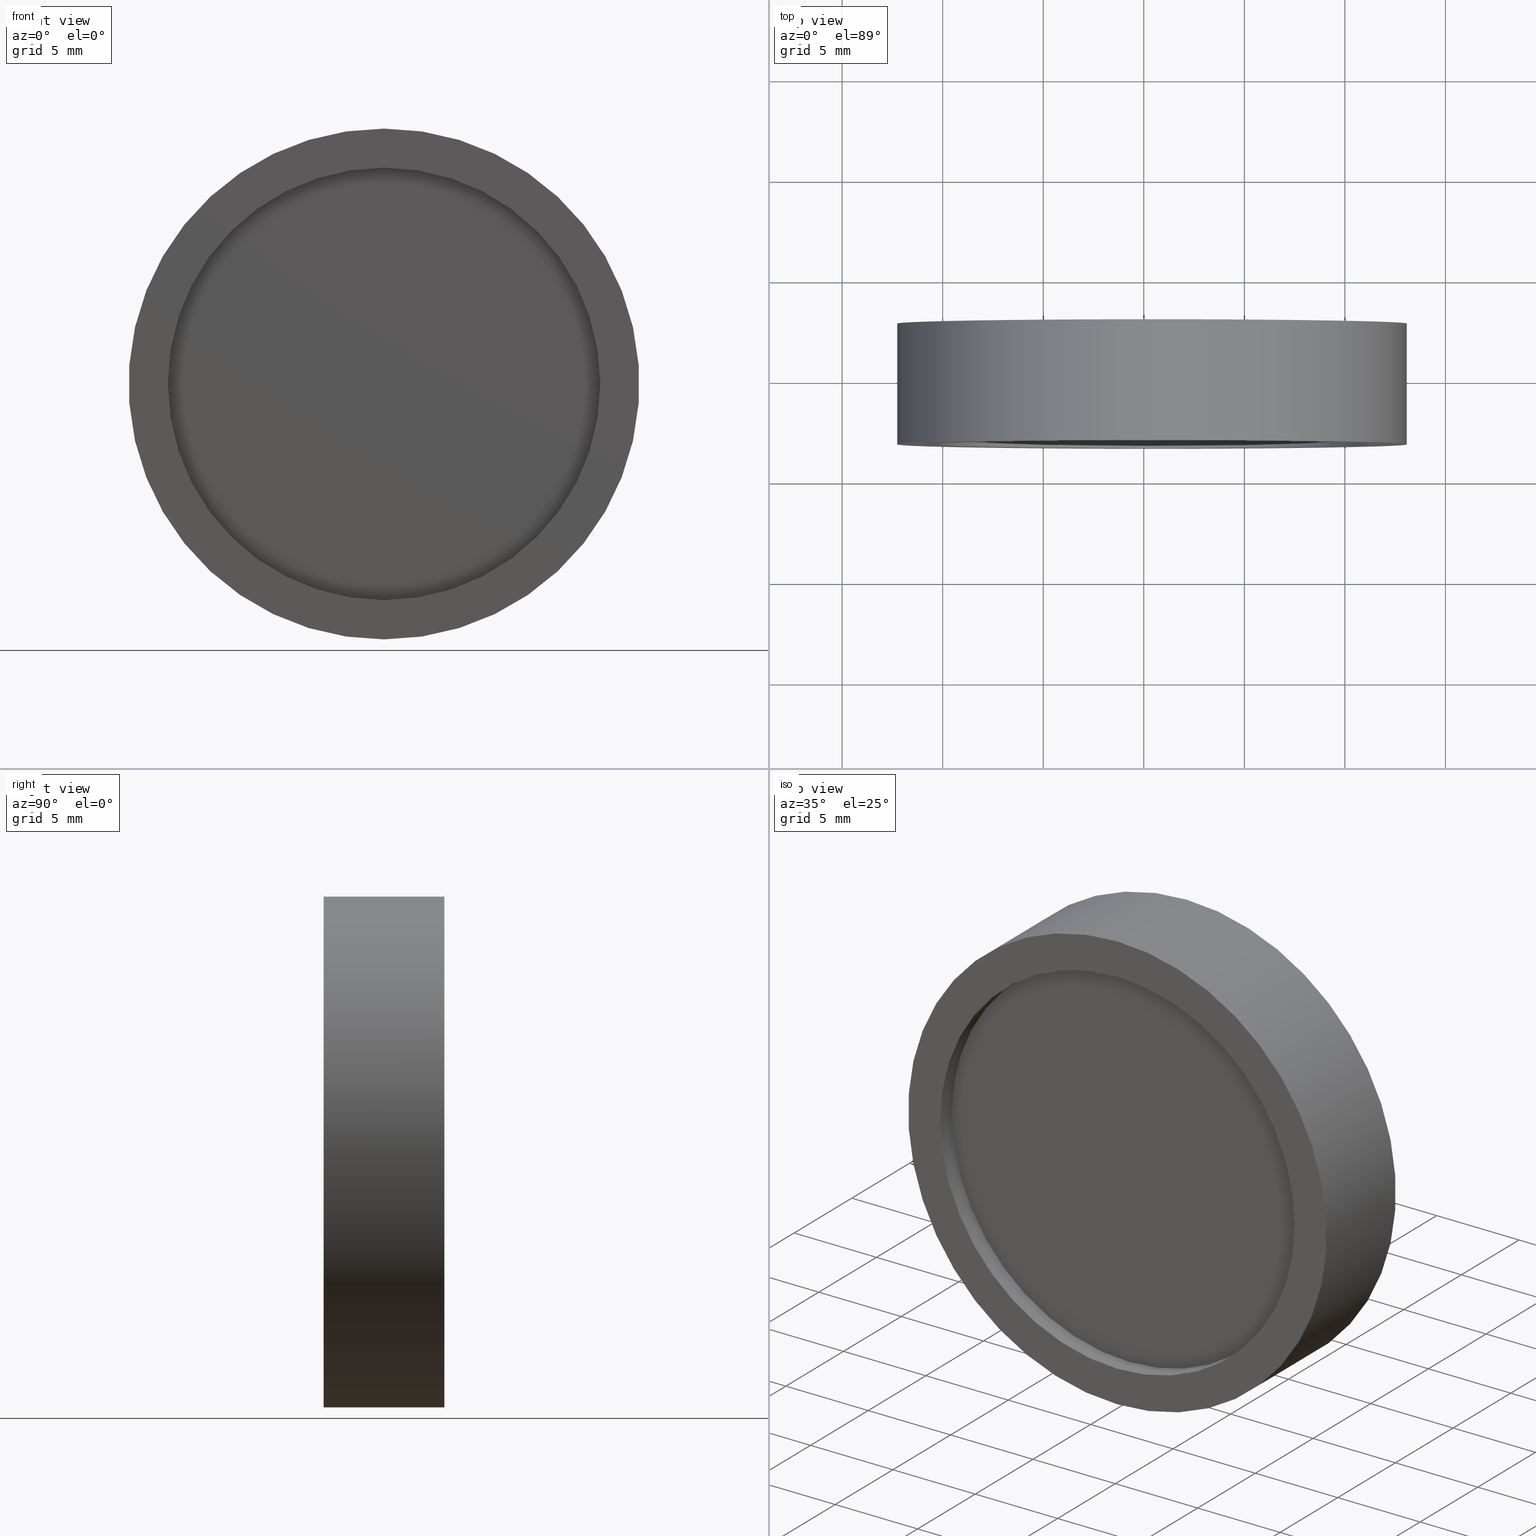
[diagram: canonical four-view strip — front | top / right | iso, engineering-drawing reading convention]
A machine part, canonical four-view strip (front | top / right | iso — engineering-drawing reading convention). The complete STEP part file that produces these views, byte-faithful:
ISO-10303-21;
HEADER;
FILE_DESCRIPTION (( 'STEP AP214' ),
    '1' );
FILE_NAME ('198750.STEP',
    '2020-07-13T08:22:41',
    ( '' ),
    ( '' ),
    'SwSTEP 2.0',
    'SolidWorks 2019',
    '' );
FILE_SCHEMA (( 'AUTOMOTIVE_DESIGN' ));
ENDSEC;

DATA;
#1 = SURFACE_STYLE_USAGE ( .BOTH. , #406 ) ;
#2 =( GEOMETRIC_REPRESENTATION_CONTEXT ( 3 ) GLOBAL_UNCERTAINTY_ASSIGNED_CONTEXT ( ( #411 ) ) GLOBAL_UNIT_ASSIGNED_CONTEXT ( ( #206, #419, #150 ) ) REPRESENTATION_CONTEXT ( 'NONE', 'WORKASPACE' ) );
#3 = AXIS2_PLACEMENT_3D ( 'NONE', #712, #114, #586 ) ;
#4 = DIRECTION ( 'NONE',  ( -0.0000000000000000000, -1.000000000000000000, -0.0000000000000000000 ) ) ;
#5 = COLOUR_RGB ( '',1.000000000000000000, 1.000000000000000000, 1.000000000000000000 ) ;
#6 = CARTESIAN_POINT ( 'NONE',  ( -47.00863070283244127, -6.159296399802727251, -0.9060093458659954635 ) ) ;
#7 = PLANE ( 'NONE',  #820 ) ;
#8 = ORIENTED_EDGE ( 'NONE', *, *, #475, .T. ) ;
#9 = EDGE_CURVE ( 'NONE', #635, #725, #780, .T. ) ;
#10 = CYLINDRICAL_SURFACE ( 'NONE', #432, 10.75000000000000000 ) ;
#11 = SURFACE_STYLE_FILL_AREA ( #688 ) ;
#12 = DIRECTION ( 'NONE',  ( -0.0000000000000000000, -1.000000000000000000, -0.0000000000000000000 ) ) ;
#13 = VERTEX_POINT ( 'NONE', #17 ) ;
#14 = DIRECTION ( 'NONE',  ( 0.0000000000000000000, 1.000000000000000000, 0.0000000000000000000 ) ) ;
#15 =( GEOMETRIC_REPRESENTATION_CONTEXT ( 3 ) GLOBAL_UNCERTAINTY_ASSIGNED_CONTEXT ( ( #612 ) ) GLOBAL_UNIT_ASSIGNED_CONTEXT ( ( #797, #262, #347 ) ) REPRESENTATION_CONTEXT ( 'NONE', 'WORKASPACE' ) );
#16 = MECHANICAL_DESIGN_GEOMETRIC_PRESENTATION_REPRESENTATION (  '', ( #72 ), #240 ) ;
#17 = CARTESIAN_POINT ( 'NONE',  ( -23.87014283265796166, -5.159296399802727251, 0.7822972263501586365 ) ) ;
#18 = COLOUR_RGB ( '',1.000000000000000000, 1.000000000000000000, 1.000000000000000000 ) ;
#19 = DIRECTION ( 'NONE',  ( 0.0000000000000000000, 1.000000000000000000, 0.0000000000000000000 ) ) ;
#20 = SURFACE_SIDE_STYLE ('',( #816 ) ) ;
#21 = COLOUR_RGB ( '',1.000000000000000000, 1.000000000000000000, 1.000000000000000000 ) ;
#22 = PRODUCT_RELATED_PRODUCT_CATEGORY ( 'part', '', ( #503 ) ) ;
#23 = FACE_BOUND ( 'NONE', #578, .T. ) ;
#24 = MANIFOLD_SOLID_BREP ( '��Ƭ-1-solid1', #796 ) ;
#25 = SURFACE_SIDE_STYLE ('',( #565 ) ) ;
#26 = SURFACE_SIDE_STYLE ('',( #506 ) ) ;
#27 = CARTESIAN_POINT ( 'NONE',  ( -34.59164044491552659, -8.259296399802728672, 12.44999999999999929 ) ) ;
#28 = ORIENTED_EDGE ( 'NONE', *, *, #475, .F. ) ;
#29 = DIRECTION ( 'NONE',  ( 0.0000000000000000000, 0.0000000000000000000, -1.000000000000000000 ) ) ;
#30 = AXIS2_PLACEMENT_3D ( 'NONE', #355, #359, #686 ) ;
#31 = AXIS2_PLACEMENT_3D ( 'NONE', #790, #128, #258 ) ;
#32 =( GEOMETRIC_REPRESENTATION_CONTEXT ( 3 ) GLOBAL_UNCERTAINTY_ASSIGNED_CONTEXT ( ( #733 ) ) GLOBAL_UNIT_ASSIGNED_CONTEXT ( ( #729, #787, #142 ) ) REPRESENTATION_CONTEXT ( 'NONE', 'WORKASPACE' ) );
#33 = ORIENTED_EDGE ( 'NONE', *, *, #547, .F. ) ;
#34 = ADVANCED_FACE ( 'NONE', ( #824 ), #388, .F. ) ;
#35 = ORIENTED_EDGE ( 'NONE', *, *, #462, .T. ) ;
#36 = FILL_AREA_STYLE ('',( #581 ) ) ;
#37 = SURFACE_STYLE_USAGE ( .BOTH. , #563 ) ;
#38 = DIRECTION ( 'NONE',  ( -0.0000000000000000000, -1.000000000000000000, -0.0000000000000000000 ) ) ;
#39 = ORIENTED_EDGE ( 'NONE', *, *, #226, .T. ) ;
#40 = CARTESIAN_POINT ( 'NONE',  ( -34.59164044491552659, -8.259296399802728672, -12.44999999999999929 ) ) ;
#41 =( GEOMETRIC_REPRESENTATION_CONTEXT ( 3 ) GLOBAL_UNCERTAINTY_ASSIGNED_CONTEXT ( ( #788 ) ) GLOBAL_UNIT_ASSIGNED_CONTEXT ( ( #753, #757, #681 ) ) REPRESENTATION_CONTEXT ( 'NONE', 'WORKASPACE' ) );
#42 = CARTESIAN_POINT ( 'NONE',  ( -22.14164044491552730, -2.259296399802728228, 0.0000000000000000000 ) ) ;
#43 = COLOUR_RGB ( '',1.000000000000000000, 1.000000000000000000, 1.000000000000000000 ) ;
#44 = STYLED_ITEM ( 'NONE', ( #498 ), #253 ) ;
#45 = UNCERTAINTY_MEASURE_WITH_UNIT (LENGTH_MEASURE( 1.000000000000000082E-05 ), #717, 'distance_accuracy_value', 'NONE');
#46 = CIRCLE ( 'NONE', #346, 10.75000000000000000 ) ;
#47 = FACE_BOUND ( 'NONE', #426, .T. ) ;
#48 = EDGE_CURVE ( 'NONE', #725, #635, #49, .T. ) ;
#49 = CIRCLE ( 'NONE', #198, 10.75000000000000000 ) ;
#50 = CARTESIAN_POINT ( 'NONE',  ( -22.17465018699862966, -5.159296399802727251, 0.9060093458659974619 ) ) ;
#51 = AXIS2_PLACEMENT_3D ( 'NONE', #548, #14, #82 ) ;
#52 =( LENGTH_UNIT ( ) NAMED_UNIT ( * ) SI_UNIT ( .MILLI., .METRE. ) );
#53 =( LENGTH_UNIT ( ) NAMED_UNIT ( * ) SI_UNIT ( .MILLI., .METRE. ) );
#54 = PRESENTATION_STYLE_ASSIGNMENT (( #250 ) ) ;
#55 =( NAMED_UNIT ( * ) SI_UNIT ( $, .STERADIAN. ) SOLID_ANGLE_UNIT ( ) );
#56 = SURFACE_SIDE_STYLE ('',( #88 ) ) ;
#57 = CARTESIAN_POINT ( 'NONE',  ( -42.09958859723342073, -7.259296399802728672, -9.931425604720907074 ) ) ;
#58 = CARTESIAN_POINT ( 'NONE',  ( -34.59164044491552659, -8.259296399802728672, 0.0000000000000000000 ) ) ;
#59 = EDGE_CURVE ( 'NONE', #617, #464, #636, .T. ) ;
#60 = CIRCLE ( 'NONE', #661, 12.44999999999999929 ) ;
#61 = ORIENTED_EDGE ( 'NONE', *, *, #741, .F. ) ;
#62 = CARTESIAN_POINT ( 'NONE',  ( -34.59164044491553369, -5.159296399802727251, 1.860084352170443545E-15 ) ) ;
#63 =( NAMED_UNIT ( * ) SI_UNIT ( $, .STERADIAN. ) SOLID_ANGLE_UNIT ( ) );
#64 = APPLICATION_PROTOCOL_DEFINITION ( 'draft international standard', 'automotive_design', 1998, #85 ) ;
#65 = VERTEX_POINT ( 'NONE', #452 ) ;
#66 = DIRECTION ( 'NONE',  ( -0.0000000000000000000, -1.000000000000000000, 0.0000000000000000000 ) ) ;
#67 = FILL_AREA_STYLE_COLOUR ( '', #751 ) ;
#68 = DIRECTION ( 'NONE',  ( -0.0000000000000000000, -1.000000000000000000, -0.0000000000000000000 ) ) ;
#69 = CARTESIAN_POINT ( 'NONE',  ( -34.59164044491552659, -8.259296399802728672, -10.75000000000000000 ) ) ;
#70 = UNCERTAINTY_MEASURE_WITH_UNIT (LENGTH_MEASURE( 1.000000000000000082E-05 ), #223, 'distance_accuracy_value', 'NONE');
#71 = MECHANICAL_DESIGN_GEOMETRIC_PRESENTATION_REPRESENTATION (  '', ( #477 ), #390 ) ;
#72 = STYLED_ITEM ( 'NONE', ( #112 ), #519 ) ;
#73 = DIRECTION ( 'NONE',  ( 0.0000000000000000000, 1.000000000000000000, 0.0000000000000000000 ) ) ;
#74 = ADVANCED_FACE ( 'NONE', ( #47, #314 ), #395, .T. ) ;
#75 = DIRECTION ( 'NONE',  ( -0.0000000000000000000, -1.000000000000000000, 0.0000000000000000000 ) ) ;
#76 = DIRECTION ( 'NONE',  ( -0.0000000000000000000, -1.000000000000000000, 0.0000000000000000000 ) ) ;
#77 = ORIENTED_EDGE ( 'NONE', *, *, #804, .F. ) ;
#78 =( GEOMETRIC_REPRESENTATION_CONTEXT ( 3 ) GLOBAL_UNCERTAINTY_ASSIGNED_CONTEXT ( ( #859 ) ) GLOBAL_UNIT_ASSIGNED_CONTEXT ( ( #608, #264, #276 ) ) REPRESENTATION_CONTEXT ( 'NONE', 'WORKASPACE' ) );
#79 = FACE_OUTER_BOUND ( 'NONE', #570, .T. ) ;
#80 = CARTESIAN_POINT ( 'NONE',  ( -34.59164044491551238, -7.259296399802728672, 0.0000000000000000000 ) ) ;
#81 = ORIENTED_EDGE ( 'NONE', *, *, #599, .F. ) ;
#82 = DIRECTION ( 'NONE',  ( 0.6030480443628842835, 0.0000000000000000000, 0.7977048678490690214 ) ) ;
#83 = ORIENTED_EDGE ( 'NONE', *, *, #356, .T. ) ;
#84 = LINE ( 'NONE', #815, #792 ) ;
#85 = APPLICATION_CONTEXT ( 'automotive_design' ) ;
#86 = EDGE_CURVE ( 'NONE', #304, #637, #769, .T. ) ;
#87 = MECHANICAL_DESIGN_GEOMETRIC_PRESENTATION_REPRESENTATION (  '', ( #846 ), #41 ) ;
#88 = SURFACE_STYLE_FILL_AREA ( #687 ) ;
#89 = AXIS2_PLACEMENT_3D ( 'NONE', #62, #75, #728 ) ;
#90 = CYLINDRICAL_SURFACE ( 'NONE', #508, 12.69999999999999929 ) ;
#91 = MECHANICAL_DESIGN_GEOMETRIC_PRESENTATION_REPRESENTATION (  '', ( #776 ), #610 ) ;
#92 = COLOUR_RGB ( '',1.000000000000000000, 1.000000000000000000, 1.000000000000000000 ) ;
#93 = DIRECTION ( 'NONE',  ( -0.0000000000000000000, -1.000000000000000000, -0.0000000000000000000 ) ) ;
#94 = PRESENTATION_STYLE_ASSIGNMENT (( #483 ) ) ;
#95 = FILL_AREA_STYLE_COLOUR ( '', #297 ) ;
#96 = STYLED_ITEM ( 'NONE', ( #245 ), #137 ) ;
#97 = DIRECTION ( 'NONE',  ( -0.0000000000000000000, -1.000000000000000000, -0.0000000000000000000 ) ) ;
#98 =( NAMED_UNIT ( * ) SI_UNIT ( $, .STERADIAN. ) SOLID_ANGLE_UNIT ( ) );
#99 = PRESENTATION_STYLE_ASSIGNMENT (( #683 ) ) ;
#100 = SURFACE_STYLE_FILL_AREA ( #298 ) ;
#101 = VERTEX_POINT ( 'NONE', #447 ) ;
#102 = CARTESIAN_POINT ( 'NONE',  ( -34.59164044491552659, -2.259296399802728228, -12.69999999999999929 ) ) ;
#103 =( NAMED_UNIT ( * ) SI_UNIT ( $, .STERADIAN. ) SOLID_ANGLE_UNIT ( ) );
#104 = ORIENTED_EDGE ( 'NONE', *, *, #394, .T. ) ;
#105 = SURFACE_STYLE_FILL_AREA ( #762 ) ;
#106 = AXIS2_PLACEMENT_3D ( 'NONE', #680, #366, #737 ) ;
#107 = EDGE_CURVE ( 'NONE', #338, #65, #768, .T. ) ;
#108 = ORIENTED_EDGE ( 'NONE', *, *, #147, .T. ) ;
#109 = PRESENTATION_LAYER_ASSIGNMENT (  '', '', ( #431 ) ) ;
#110 = ORIENTED_EDGE ( 'NONE', *, *, #487, .F. ) ;
#111 = DIRECTION ( 'NONE',  ( -0.0000000000000000000, -1.000000000000000000, 0.0000000000000000000 ) ) ;
#112 = PRESENTATION_STYLE_ASSIGNMENT (( #518 ) ) ;
#113 = SURFACE_STYLE_USAGE ( .BOTH. , #458 ) ;
#114 = DIRECTION ( 'NONE',  ( -0.0000000000000000000, 1.000000000000000000, 0.0000000000000000000 ) ) ;
#115 = EDGE_CURVE ( 'NONE', #682, #215, #244, .T. ) ;
#116 = CARTESIAN_POINT ( 'NONE',  ( -34.59164044491553369, -5.159296399802727251, 1.860084352170443545E-15 ) ) ;
#117 = COLOUR_RGB ( '',1.000000000000000000, 1.000000000000000000, 1.000000000000000000 ) ;
#118 = CYLINDRICAL_SURFACE ( 'NONE', #317, 12.44999999999999574 ) ;
#119 = VECTOR ( 'NONE', #180, 1000.000000000000000 ) ;
#120 = PRESENTATION_STYLE_ASSIGNMENT (( #716 ) ) ;
#121 =( NAMED_UNIT ( * ) PLANE_ANGLE_UNIT ( ) SI_UNIT ( $, .RADIAN. ) );
#122 = PRESENTATION_STYLE_ASSIGNMENT (( #460 ) ) ;
#123 = FILL_AREA_STYLE ('',( #181 ) ) ;
#124 = SURFACE_STYLE_USAGE ( .BOTH. , #720 ) ;
#125 = UNCERTAINTY_MEASURE_WITH_UNIT (LENGTH_MEASURE( 1.000000000000000082E-05 ), #779, 'distance_accuracy_value', 'NONE');
#126 = PRESENTATION_STYLE_ASSIGNMENT (( #545 ) ) ;
#127 = AXIS2_PLACEMENT_3D ( 'NONE', #734, #213, #138 ) ;
#128 = DIRECTION ( 'NONE',  ( 0.0000000000000000000, 0.0000000000000000000, 1.000000000000000000 ) ) ;
#129 = ORIENTED_EDGE ( 'NONE', *, *, #147, .F. ) ;
#130 = DIRECTION ( 'NONE',  ( 0.0000000000000000000, 1.000000000000000000, 0.0000000000000000000 ) ) ;
#131 = AXIS2_PLACEMENT_3D ( 'NONE', #585, #590, #718 ) ;
#132 = UNCERTAINTY_MEASURE_WITH_UNIT (LENGTH_MEASURE( 1.000000000000000082E-05 ), #560, 'distance_accuracy_value', 'NONE');
#133 = FILL_AREA_STYLE_COLOUR ( '', #726 ) ;
#134 = ORIENTED_EDGE ( 'NONE', *, *, #669, .F. ) ;
#135 = DIRECTION ( 'NONE',  ( 0.0000000000000000000, 0.0000000000000000000, -1.000000000000000000 ) ) ;
#136 =( LENGTH_UNIT ( ) NAMED_UNIT ( * ) SI_UNIT ( .MILLI., .METRE. ) );
#137 = ADVANCED_FACE ( 'NONE', ( #845 ), #118, .T. ) ;
#138 = DIRECTION ( 'NONE',  ( 0.9973486150937277417, 0.0000000000000000000, 0.07277183500931706794 ) ) ;
#139 = CARTESIAN_POINT ( 'NONE',  ( -34.59164044491552659, -2.259296399802728228, 12.44999999999999929 ) ) ;
#140 = FACE_OUTER_BOUND ( 'NONE', #334, .T. ) ;
#141 = CARTESIAN_POINT ( 'NONE',  ( -34.59164044491553369, -5.159296399802727251, 1.860084352170443545E-15 ) ) ;
#142 =( NAMED_UNIT ( * ) SI_UNIT ( $, .STERADIAN. ) SOLID_ANGLE_UNIT ( ) );
#143 = ORIENTED_EDGE ( 'NONE', *, *, #785, .T. ) ;
#144 = AXIS2_PLACEMENT_3D ( 'NONE', #766, #111, #374 ) ;
#145 = CYLINDRICAL_SURFACE ( 'NONE', #810, 12.44999999999999929 ) ;
#146 = SURFACE_STYLE_FILL_AREA ( #618 ) ;
#147 = EDGE_CURVE ( 'NONE', #13, #259, #798, .T. ) ;
#148 = DIRECTION ( 'NONE',  ( 0.0000000000000000000, -1.000000000000000000, -0.0000000000000000000 ) ) ;
#149 = FILL_AREA_STYLE_COLOUR ( '', #21 ) ;
#150 =( NAMED_UNIT ( * ) SI_UNIT ( $, .STERADIAN. ) SOLID_ANGLE_UNIT ( ) );
#151 = FACE_OUTER_BOUND ( 'NONE', #676, .T. ) ;
#152 = PRESENTATION_LAYER_ASSIGNMENT (  '', '', ( #284 ) ) ;
#153 = CARTESIAN_POINT ( 'NONE',  ( -22.17465018699862611, -5.159296399802727251, 0.9060093458659976839 ) ) ;
#154 = MECHANICAL_DESIGN_GEOMETRIC_PRESENTATION_REPRESENTATION (  '', ( #330 ), #649 ) ;
#155 = PRODUCT_DEFINITION_SHAPE ( 'NONE', 'NONE',  #641 ) ;
#156 =( NAMED_UNIT ( * ) PLANE_ANGLE_UNIT ( ) SI_UNIT ( $, .RADIAN. ) );
#157 = ORIENTED_EDGE ( 'NONE', *, *, #86, .T. ) ;
#158 = CARTESIAN_POINT ( 'NONE',  ( -34.59164044491552659, -2.259296399802728228, 0.0000000000000000000 ) ) ;
#159 = ADVANCED_FACE ( 'NONE', ( #456 ), #10, .F. ) ;
#160 = FILL_AREA_STYLE_COLOUR ( '', #18 ) ;
#161 = ORIENTED_EDGE ( 'NONE', *, *, #818, .T. ) ;
#162 = CARTESIAN_POINT ( 'NONE',  ( -45.31313805717311283, -6.159296399802727251, -0.7822972263501563051 ) ) ;
#163 =( NAMED_UNIT ( * ) SI_UNIT ( $, .STERADIAN. ) SOLID_ANGLE_UNIT ( ) );
#164 = MECHANICAL_DESIGN_GEOMETRIC_PRESENTATION_REPRESENTATION (  '', ( #803 ), #789 ) ;
#165 = VERTEX_POINT ( 'NONE', #6 ) ;
#166 = PRESENTATION_STYLE_ASSIGNMENT (( #521 ) ) ;
#167 = SURFACE_SIDE_STYLE ('',( #767 ) ) ;
#168 = MECHANICAL_DESIGN_GEOMETRIC_PRESENTATION_REPRESENTATION (  '', ( #651 ), #529 ) ;
#169 = DIRECTION ( 'NONE',  ( -0.0000000000000000000, -1.000000000000000000, 0.0000000000000000000 ) ) ;
#170 = EDGE_CURVE ( 'NONE', #743, #668, #571, .T. ) ;
#171 = ORIENTED_EDGE ( 'NONE', *, *, #804, .T. ) ;
#172 = CYLINDRICAL_SURFACE ( 'NONE', #648, 12.44999999999999929 ) ;
#173 = DIRECTION ( 'NONE',  ( -0.0000000000000000000, -1.000000000000000000, 0.0000000000000000000 ) ) ;
#174 = SURFACE_SIDE_STYLE ('',( #178 ) ) ;
#175 = SURFACE_SIDE_STYLE ('',( #321 ) ) ;
#176 = CIRCLE ( 'NONE', #673, 10.75000000000000000 ) ;
#177 = PRESENTATION_LAYER_ASSIGNMENT (  '', '', ( #596 ) ) ;
#178 = SURFACE_STYLE_FILL_AREA ( #533 ) ;
#179 = PRODUCT_DEFINITION_CONTEXT ( 'detailed design', #85, 'design' ) ;
#180 = DIRECTION ( 'NONE',  ( -0.0000000000000000000, -1.000000000000000000, -0.0000000000000000000 ) ) ;
#181 = FILL_AREA_STYLE_COLOUR ( '', #614 ) ;
#182 = SURFACE_SIDE_STYLE ('',( #662 ) ) ;
#183 = SURFACE_STYLE_FILL_AREA ( #719 ) ;
#184 = EDGE_CURVE ( 'NONE', #758, #482, #393, .T. ) ;
#185 = SURFACE_SIDE_STYLE ('',( #850 ) ) ;
#186 = CARTESIAN_POINT ( 'NONE',  ( -34.59164044491553369, -6.159296399802727251, 1.860084352170443545E-15 ) ) ;
#187 = PLANE ( 'NONE',  #3 ) ;
#188 = UNCERTAINTY_MEASURE_WITH_UNIT (LENGTH_MEASURE( 1.000000000000000082E-05 ), #817, 'distance_accuracy_value', 'NONE');
#189 = SURFACE_STYLE_FILL_AREA ( #724 ) ;
#190 = ORIENTED_EDGE ( 'NONE', *, *, #530, .T. ) ;
#191 = FILL_AREA_STYLE_COLOUR ( '', #117 ) ;
#192 = AXIS2_PLACEMENT_3D ( 'NONE', #418, #68, #605 ) ;
#193 = DIRECTION ( 'NONE',  ( 0.6030480443628841725, 0.0000000000000000000, 0.7977048678490691325 ) ) ;
#194 = AXIS2_PLACEMENT_3D ( 'NONE', #417, #200, #607 ) ;
#195 = ORIENTED_EDGE ( 'NONE', *, *, #462, .F. ) ;
#196 = STYLED_ITEM ( 'NONE', ( #54 ), #558 ) ;
#197 = SURFACE_SIDE_STYLE ('',( #340 ) ) ;
#198 = AXIS2_PLACEMENT_3D ( 'NONE', #653, #301, #839 ) ;
#199 =( NAMED_UNIT ( * ) PLANE_ANGLE_UNIT ( ) SI_UNIT ( $, .RADIAN. ) );
#200 = DIRECTION ( 'NONE',  ( -0.0000000000000000000, 1.000000000000000000, 0.0000000000000000000 ) ) ;
#201 = UNCERTAINTY_MEASURE_WITH_UNIT (LENGTH_MEASURE( 1.000000000000000082E-05 ), #52, 'distance_accuracy_value', 'NONE');
#202 = ADVANCED_FACE ( 'NONE', ( #272 ), #476, .F. ) ;
#203 = DIRECTION ( 'NONE',  ( -0.9973486150937277417, 0.0000000000000000000, -0.07277183500931705407 ) ) ;
#204 = CARTESIAN_POINT ( 'NONE',  ( -34.59164044491552659, -7.259296399802728672, 0.0000000000000000000 ) ) ;
#205 = DIRECTION ( 'NONE',  ( 0.0000000000000000000, 0.0000000000000000000, -1.000000000000000000 ) ) ;
#206 =( LENGTH_UNIT ( ) NAMED_UNIT ( * ) SI_UNIT ( .MILLI., .METRE. ) );
#207 = STYLED_ITEM ( 'NONE', ( #126 ), #621 ) ;
#208 = LINE ( 'NONE', #543, #252 ) ;
#209 = EDGE_LOOP ( 'NONE', ( #630, #104, #535, #575 ) ) ;
#210 = PRESENTATION_LAYER_ASSIGNMENT (  '', '', ( #846 ) ) ;
#211 = AXIS2_PLACEMENT_3D ( 'NONE', #829, #701, #750 ) ;
#212 =( GEOMETRIC_REPRESENTATION_CONTEXT ( 3 ) GLOBAL_UNCERTAINTY_ASSIGNED_CONTEXT ( ( #201 ) ) GLOBAL_UNIT_ASSIGNED_CONTEXT ( ( #52, #463, #450 ) ) REPRESENTATION_CONTEXT ( 'NONE', 'WORKASPACE' ) );
#213 = DIRECTION ( 'NONE',  ( 0.0000000000000000000, 1.000000000000000000, 0.0000000000000000000 ) ) ;
#214 = EDGE_CURVE ( 'NONE', #165, #65, #577, .T. ) ;
#215 = VERTEX_POINT ( 'NONE', #413 ) ;
#216 = CARTESIAN_POINT ( 'NONE',  ( -34.59164044491551238, -7.259296399802728672, 0.0000000000000000000 ) ) ;
#217 = ORIENTED_EDGE ( 'NONE', *, *, #214, .F. ) ;
#218 =( NAMED_UNIT ( * ) SI_UNIT ( $, .STERADIAN. ) SOLID_ANGLE_UNIT ( ) );
#219 = EDGE_LOOP ( 'NONE', ( #484, #110 ) ) ;
#220 = FILL_AREA_STYLE_COLOUR ( '', #568 ) ;
#221 =( NAMED_UNIT ( * ) PLANE_ANGLE_UNIT ( ) SI_UNIT ( $, .RADIAN. ) );
#222 = LINE ( 'NONE', #27, #296 ) ;
#223 =( LENGTH_UNIT ( ) NAMED_UNIT ( * ) SI_UNIT ( .MILLI., .METRE. ) );
#224 = ORIENTED_EDGE ( 'NONE', *, *, #505, .T. ) ;
#225 = DIRECTION ( 'NONE',  ( 0.0000000000000000000, 0.0000000000000000000, -1.000000000000000000 ) ) ;
#226 = EDGE_CURVE ( 'NONE', #822, #497, #623, .T. ) ;
#227 =( GEOMETRIC_REPRESENTATION_CONTEXT ( 3 ) GLOBAL_UNCERTAINTY_ASSIGNED_CONTEXT ( ( #740 ) ) GLOBAL_UNIT_ASSIGNED_CONTEXT ( ( #53, #760, #576 ) ) REPRESENTATION_CONTEXT ( 'NONE', 'WORKASPACE' ) );
#228 = STYLED_ITEM ( 'NONE', ( #247 ), #159 ) ;
#229 = VERTEX_POINT ( 'NONE', #678 ) ;
#230 = CARTESIAN_POINT ( 'NONE',  ( -34.59164044491552659, -8.259296399802728672, 0.0000000000000000000 ) ) ;
#231 = FILL_AREA_STYLE_COLOUR ( '', #266 ) ;
#232 = ORIENTED_EDGE ( 'NONE', *, *, #265, .T. ) ;
#233 = FACE_OUTER_BOUND ( 'NONE', #537, .T. ) ;
#234 = ORIENTED_EDGE ( 'NONE', *, *, #237, .T. ) ;
#235 = FILL_AREA_STYLE_COLOUR ( '', #830 ) ;
#236 =( LENGTH_UNIT ( ) NAMED_UNIT ( * ) SI_UNIT ( .MILLI., .METRE. ) );
#237 = EDGE_CURVE ( 'NONE', #229, #165, #353, .T. ) ;
#238 = PRESENTATION_LAYER_ASSIGNMENT (  '', '', ( #44 ) ) ;
#239 =( NAMED_UNIT ( * ) PLANE_ANGLE_UNIT ( ) SI_UNIT ( $, .RADIAN. ) );
#240 =( GEOMETRIC_REPRESENTATION_CONTEXT ( 3 ) GLOBAL_UNCERTAINTY_ASSIGNED_CONTEXT ( ( #45 ) ) GLOBAL_UNIT_ASSIGNED_CONTEXT ( ( #717, #397, #392 ) ) REPRESENTATION_CONTEXT ( 'NONE', 'WORKASPACE' ) );
#241 = PRESENTATION_LAYER_ASSIGNMENT (  '', '', ( #196 ) ) ;
#242 = EDGE_LOOP ( 'NONE', ( #61, #354, #622, #853 ) ) ;
#243 = SURFACE_STYLE_USAGE ( .BOTH. , #381 ) ;
#244 = CIRCLE ( 'NONE', #367, 10.75000000000000000 ) ;
#245 = PRESENTATION_STYLE_ASSIGNMENT (( #655 ) ) ;
#246 =( NAMED_UNIT ( * ) PLANE_ANGLE_UNIT ( ) SI_UNIT ( $, .RADIAN. ) );
#247 = PRESENTATION_STYLE_ASSIGNMENT (( #113 ) ) ;
#248 =( LENGTH_UNIT ( ) NAMED_UNIT ( * ) SI_UNIT ( .MILLI., .METRE. ) );
#249 = DIRECTION ( 'NONE',  ( 0.0000000000000000000, 0.0000000000000000000, -1.000000000000000000 ) ) ;
#250 = SURFACE_STYLE_USAGE ( .BOTH. , #525 ) ;
#251 = CIRCLE ( 'NONE', #106, 12.44999999999999574 ) ;
#252 = VECTOR ( 'NONE', #670, 1000.000000000000000 ) ;
#253 = ADVANCED_FACE ( 'NONE', ( #698 ), #694, .F. ) ;
#254 = COLOUR_RGB ( '',1.000000000000000000, 1.000000000000000000, 1.000000000000000000 ) ;
#255 = DIRECTION ( 'NONE',  ( -0.9973486150937277417, 0.0000000000000000000, -0.07277183500931706794 ) ) ;
#256 = PRESENTATION_LAYER_ASSIGNMENT (  '', '', ( #228 ) ) ;
#257 = CARTESIAN_POINT ( 'NONE',  ( -23.87014283265796166, -5.159296399802727251, 0.7822972263501587475 ) ) ;
#258 = DIRECTION ( 'NONE',  ( 1.000000000000000000, 0.0000000000000000000, 0.0000000000000000000 ) ) ;
#259 = VERTEX_POINT ( 'NONE', #756 ) ;
#260 = CARTESIAN_POINT ( 'NONE',  ( -34.59164044491552659, -7.259296399802728672, -12.44999999999999929 ) ) ;
#261 = PRESENTATION_STYLE_ASSIGNMENT (( #344 ) ) ;
#262 =( NAMED_UNIT ( * ) PLANE_ANGLE_UNIT ( ) SI_UNIT ( $, .RADIAN. ) );
#263 = ORIENTED_EDGE ( 'NONE', *, *, #170, .T. ) ;
#264 =( NAMED_UNIT ( * ) PLANE_ANGLE_UNIT ( ) SI_UNIT ( $, .RADIAN. ) );
#265 = EDGE_CURVE ( 'NONE', #637, #304, #328, .T. ) ;
#266 = COLOUR_RGB ( '',1.000000000000000000, 1.000000000000000000, 1.000000000000000000 ) ;
#267 = VECTOR ( 'NONE', #173, 1000.000000000000000 ) ;
#268 = AXIS2_PLACEMENT_3D ( 'NONE', #336, #542, #855 ) ;
#269 = AXIS2_PLACEMENT_3D ( 'NONE', #80, #469, #193 ) ;
#270 =( NAMED_UNIT ( * ) PLANE_ANGLE_UNIT ( ) SI_UNIT ( $, .RADIAN. ) );
#271 = COLOUR_RGB ( '',1.000000000000000000, 1.000000000000000000, 1.000000000000000000 ) ;
#272 = FACE_OUTER_BOUND ( 'NONE', #828, .T. ) ;
#273 = FACE_OUTER_BOUND ( 'NONE', #791, .T. ) ;
#274 = CARTESIAN_POINT ( 'NONE',  ( -34.59164044491552659, -2.259296399802728228, -12.44999999999999929 ) ) ;
#275 = UNCERTAINTY_MEASURE_WITH_UNIT (LENGTH_MEASURE( 1.000000000000000082E-05 ), #136, 'distance_accuracy_value', 'NONE');
#276 =( NAMED_UNIT ( * ) SI_UNIT ( $, .STERADIAN. ) SOLID_ANGLE_UNIT ( ) );
#277 = FILL_AREA_STYLE_COLOUR ( '', #43 ) ;
#278 = CARTESIAN_POINT ( 'NONE',  ( -34.59164044491552659, -8.259296399802728672, -12.69999999999999929 ) ) ;
#279 = ORIENTED_EDGE ( 'NONE', *, *, #842, .F. ) ;
#280 = FILL_AREA_STYLE_COLOUR ( '', #679 ) ;
#281 = VERTEX_POINT ( 'NONE', #162 ) ;
#282 = ORIENTED_EDGE ( 'NONE', *, *, #818, .F. ) ;
#283 = UNCERTAINTY_MEASURE_WITH_UNIT (LENGTH_MEASURE( 1.000000000000000082E-05 ), #665, 'distance_accuracy_value', 'NONE');
#284 = STYLED_ITEM ( 'NONE', ( #663 ), #589 ) ;
#285 = PRESENTATION_LAYER_ASSIGNMENT (  '', '', ( #477 ) ) ;
#286 = FACE_BOUND ( 'NONE', #554, .T. ) ;
#287 = COLOUR_RGB ( '',1.000000000000000000, 1.000000000000000000, 1.000000000000000000 ) ;
#288 = CARTESIAN_POINT ( 'NONE',  ( -34.59164044491552659, -2.259296399802728228, 0.0000000000000000000 ) ) ;
#289 = ORIENTED_EDGE ( 'NONE', *, *, #9, .F. ) ;
#290 = CARTESIAN_POINT ( 'NONE',  ( -23.84164044491553014, -8.259296399802728672, 0.0000000000000000000 ) ) ;
#291 =( GEOMETRIC_REPRESENTATION_CONTEXT ( 3 ) GLOBAL_UNCERTAINTY_ASSIGNED_CONTEXT ( ( #132 ) ) GLOBAL_UNIT_ASSIGNED_CONTEXT ( ( #560, #121, #318 ) ) REPRESENTATION_CONTEXT ( 'NONE', 'WORKASPACE' ) );
#292 = CARTESIAN_POINT ( 'NONE',  ( -34.59164044491553369, -6.159296399802727251, 1.860084352170443545E-15 ) ) ;
#293 = DIRECTION ( 'NONE',  ( 0.0000000000000000000, 0.0000000000000000000, -1.000000000000000000 ) ) ;
#294 = DIRECTION ( 'NONE',  ( 0.9973486150937277417, 0.0000000000000000000, 0.07277183500931705407 ) ) ;
#295 = FILL_AREA_STYLE ('',( #160 ) ) ;
#296 = VECTOR ( 'NONE', #573, 1000.000000000000000 ) ;
#297 = COLOUR_RGB ( '',1.000000000000000000, 1.000000000000000000, 1.000000000000000000 ) ;
#298 = FILL_AREA_STYLE ('',( #235 ) ) ;
#299 = EDGE_LOOP ( 'NONE', ( #157, #383, #77, #470 ) ) ;
#300 = DIRECTION ( 'NONE',  ( -0.0000000000000000000, -1.000000000000000000, -0.0000000000000000000 ) ) ;
#301 = DIRECTION ( 'NONE',  ( -0.0000000000000000000, -1.000000000000000000, -0.0000000000000000000 ) ) ;
#302 = DIRECTION ( 'NONE',  ( 0.9973486150937277417, 0.0000000000000000000, 0.07277183500931705407 ) ) ;
#303 = EDGE_LOOP ( 'NONE', ( #358, #739, #784, #33 ) ) ;
#304 = VERTEX_POINT ( 'NONE', #102 ) ;
#305 = EDGE_CURVE ( 'NONE', #445, #685, #360, .T. ) ;
#306 = PRESENTATION_STYLE_ASSIGNMENT (( #37 ) ) ;
#307 = ORIENTED_EDGE ( 'NONE', *, *, #402, .F. ) ;
#308 = CARTESIAN_POINT ( 'NONE',  ( -34.59164044491551238, -6.159296399802728139, 0.0000000000000000000 ) ) ;
#309 = CIRCLE ( 'NONE', #645, 10.75000000000000000 ) ;
#310 = AXIS2_PLACEMENT_3D ( 'NONE', #553, #492, #564 ) ;
#311 = DIRECTION ( 'NONE',  ( -0.0000000000000000000, -1.000000000000000000, 0.0000000000000000000 ) ) ;
#312 = STYLED_ITEM ( 'NONE', ( #261 ), #451 ) ;
#313 = AXIS2_PLACEMENT_3D ( 'NONE', #308, #385, #835 ) ;
#314 = FACE_OUTER_BOUND ( 'NONE', #826, .T. ) ;
#315 = MECHANICAL_DESIGN_GEOMETRIC_PRESENTATION_REPRESENTATION (  '', ( #96 ), #770 ) ;
#316 = DIRECTION ( 'NONE',  ( 0.9973486150937277417, 0.0000000000000000000, 0.07277183500931706794 ) ) ;
#317 = AXIS2_PLACEMENT_3D ( 'NONE', #657, #169, #255 ) ;
#318 =( NAMED_UNIT ( * ) SI_UNIT ( $, .STERADIAN. ) SOLID_ANGLE_UNIT ( ) );
#319 = LINE ( 'NONE', #257, #778 ) ;
#320 = UNCERTAINTY_MEASURE_WITH_UNIT (LENGTH_MEASURE( 1.000000000000000082E-05 ), #236, 'distance_accuracy_value', 'NONE');
#321 = SURFACE_STYLE_FILL_AREA ( #774 ) ;
#322 = ADVANCED_FACE ( 'NONE', ( #233 ), #823, .F. ) ;
#323 =( LENGTH_UNIT ( ) NAMED_UNIT ( * ) SI_UNIT ( .MILLI., .METRE. ) );
#324 = CARTESIAN_POINT ( 'NONE',  ( -34.59164044491551238, -6.159296399802728139, 0.0000000000000000000 ) ) ;
#325 = PRESENTATION_LAYER_ASSIGNMENT (  '', '', ( #803 ) ) ;
#326 = CIRCLE ( 'NONE', #310, 12.44999999999999929 ) ;
#327 = AXIS2_PLACEMENT_3D ( 'NONE', #349, #674, #409 ) ;
#328 = CIRCLE ( 'NONE', #704, 12.69999999999999929 ) ;
#329 = MECHANICAL_DESIGN_GEOMETRIC_PRESENTATION_REPRESENTATION (  '', ( #284 ), #809 ) ;
#330 = STYLED_ITEM ( 'NONE', ( #401 ), #444 ) ;
#331 = DIRECTION ( 'NONE',  ( -0.0000000000000000000, -1.000000000000000000, -0.0000000000000000000 ) ) ;
#332 = LINE ( 'NONE', #714, #541 ) ;
#333 = UNCERTAINTY_MEASURE_WITH_UNIT (LENGTH_MEASURE( 1.000000000000000082E-05 ), #248, 'distance_accuracy_value', 'NONE');
#334 = EDGE_LOOP ( 'NONE', ( #39, #161 ) ) ;
#335 = PRESENTATION_LAYER_ASSIGNMENT (  '', '', ( #651 ) ) ;
#336 = CARTESIAN_POINT ( 'NONE',  ( -34.59164044491553369, -6.159296399802727251, 1.860084352170443545E-15 ) ) ;
#337 =( NAMED_UNIT ( * ) SI_UNIT ( $, .STERADIAN. ) SOLID_ANGLE_UNIT ( ) );
#338 = VERTEX_POINT ( 'NONE', #153 ) ;
#339 = ADVANCED_FACE ( 'NONE', ( #495, #151 ), #480, .T. ) ;
#340 = SURFACE_STYLE_FILL_AREA ( #408 ) ;
#341 = CARTESIAN_POINT ( 'NONE',  ( -27.08369229259760402, -7.259296399802728672, 9.931425604720907074 ) ) ;
#342 = CIRCLE ( 'NONE', #268, 12.44999999999999574 ) ;
#343 = LINE ( 'NONE', #473, #579 ) ;
#344 = SURFACE_STYLE_USAGE ( .BOTH. , #410 ) ;
#345 = CIRCLE ( 'NONE', #689, 12.44999999999999929 ) ;
#346 = AXIS2_PLACEMENT_3D ( 'NONE', #546, #474, #350 ) ;
#347 =( NAMED_UNIT ( * ) SI_UNIT ( $, .STERADIAN. ) SOLID_ANGLE_UNIT ( ) );
#348 = DIRECTION ( 'NONE',  ( 0.6030480443628842835, 0.0000000000000000000, 0.7977048678490690214 ) ) ;
#349 = CARTESIAN_POINT ( 'NONE',  ( -34.59164044491553369, -5.159296399802727251, 1.860084352170443545E-15 ) ) ;
#350 = DIRECTION ( 'NONE',  ( 0.0000000000000000000, 0.0000000000000000000, -1.000000000000000000 ) ) ;
#351 = EDGE_LOOP ( 'NONE', ( #551, #664, #509, #802 ) ) ;
#352 =( LENGTH_UNIT ( ) NAMED_UNIT ( * ) SI_UNIT ( .MILLI., .METRE. ) );
#353 = LINE ( 'NONE', #619, #267 ) ;
#354 = ORIENTED_EDGE ( 'NONE', *, *, #226, .F. ) ;
#355 = CARTESIAN_POINT ( 'NONE',  ( -34.59164044491552659, -2.259296399802728228, 0.0000000000000000000 ) ) ;
#356 = EDGE_CURVE ( 'NONE', #101, #281, #176, .T. ) ;
#357 = DIRECTION ( 'NONE',  ( -0.0000000000000000000, -1.000000000000000000, -0.0000000000000000000 ) ) ;
#358 = ORIENTED_EDGE ( 'NONE', *, *, #184, .F. ) ;
#359 = DIRECTION ( 'NONE',  ( -0.0000000000000000000, -1.000000000000000000, -0.0000000000000000000 ) ) ;
#360 = CIRCLE ( 'NONE', #848, 12.44999999999999929 ) ;
#361 = PRESENTATION_STYLE_ASSIGNMENT (( #557 ) ) ;
#362 = MECHANICAL_DESIGN_GEOMETRIC_PRESENTATION_REPRESENTATION (  '', ( #527 ), #442 ) ;
#363 = PRESENTATION_LAYER_ASSIGNMENT (  '', '', ( #514 ) ) ;
#364 = CARTESIAN_POINT ( 'NONE',  ( -34.59164044491552659, -8.259296399802728672, 0.0000000000000000000 ) ) ;
#365 = EDGE_LOOP ( 'NONE', ( #217, #814 ) ) ;
#366 = DIRECTION ( 'NONE',  ( 0.0000000000000000000, 1.000000000000000000, 0.0000000000000000000 ) ) ;
#367 = AXIS2_PLACEMENT_3D ( 'NONE', #650, #841, #249 ) ;
#368 = ADVANCED_FACE ( 'NONE', ( #489 ), #145, .F. ) ;
#369 = DIRECTION ( 'NONE',  ( -0.0000000000000000000, 1.000000000000000000, 0.0000000000000000000 ) ) ;
#370 = SURFACE_SIDE_STYLE ('',( #827 ) ) ;
#371 =( LENGTH_UNIT ( ) NAMED_UNIT ( * ) SI_UNIT ( .MILLI., .METRE. ) );
#372 = CARTESIAN_POINT ( 'NONE',  ( -34.59164044491553369, -6.159296399802727251, 1.860084352170443545E-15 ) ) ;
#373 = ORIENTED_EDGE ( 'NONE', *, *, #708, .F. ) ;
#374 = DIRECTION ( 'NONE',  ( -0.9973486150937277417, 0.0000000000000000000, -0.07277183500931705407 ) ) ;
#375 = AXIS2_PLACEMENT_3D ( 'NONE', #58, #781, #847 ) ;
#376 = ORIENTED_EDGE ( 'NONE', *, *, #214, .T. ) ;
#377 = SURFACE_STYLE_USAGE ( .BOTH. , #631 ) ;
#378 = ADVANCED_FACE ( 'NONE', ( #79, #286 ), #187, .T. ) ;
#379 = ORIENTED_EDGE ( 'NONE', *, *, #777, .T. ) ;
#380 = CLOSED_SHELL ( 'NONE', ( #253, #572, #368, #202, #74, #428, #763, #322, #339 ) ) ;
#381 = SURFACE_SIDE_STYLE ('',( #11 ) ) ;
#382 = MECHANICAL_DESIGN_GEOMETRIC_PRESENTATION_REPRESENTATION (  '', ( #228 ), #78 ) ;
#383 = ORIENTED_EDGE ( 'NONE', *, *, #708, .T. ) ;
#384 = SURFACE_STYLE_FILL_AREA ( #36 ) ;
#385 = DIRECTION ( 'NONE',  ( -0.0000000000000000000, -1.000000000000000000, 0.0000000000000000000 ) ) ;
#386 = DIRECTION ( 'NONE',  ( 0.0000000000000000000, -0.0000000000000000000, 1.000000000000000000 ) ) ;
#387 =( GEOMETRIC_REPRESENTATION_CONTEXT ( 3 ) GLOBAL_UNCERTAINTY_ASSIGNED_CONTEXT ( ( #461 ) ) GLOBAL_UNIT_ASSIGNED_CONTEXT ( ( #613, #538, #807 ) ) REPRESENTATION_CONTEXT ( 'NONE', 'WORKASPACE' ) );
#388 = CYLINDRICAL_SURFACE ( 'NONE', #144, 10.75000000000000000 ) ;
#389 = SURFACE_STYLE_FILL_AREA ( #593 ) ;
#390 =( GEOMETRIC_REPRESENTATION_CONTEXT ( 3 ) GLOBAL_UNCERTAINTY_ASSIGNED_CONTEXT ( ( #320 ) ) GLOBAL_UNIT_ASSIGNED_CONTEXT ( ( #236, #567, #639 ) ) REPRESENTATION_CONTEXT ( 'NONE', 'WORKASPACE' ) );
#391 = PRESENTATION_LAYER_ASSIGNMENT (  '', '', ( #527 ) ) ;
#392 =( NAMED_UNIT ( * ) SI_UNIT ( $, .STERADIAN. ) SOLID_ANGLE_UNIT ( ) );
#393 = CIRCLE ( 'NONE', #602, 12.44999999999999929 ) ;
#394 = EDGE_CURVE ( 'NONE', #13, #101, #319, .T. ) ;
#395 = PLANE ( 'NONE',  #587 ) ;
#396 = UNCERTAINTY_MEASURE_WITH_UNIT (LENGTH_MEASURE( 1.000000000000000082E-05 ), #598, 'distance_accuracy_value', 'NONE');
#397 =( NAMED_UNIT ( * ) PLANE_ANGLE_UNIT ( ) SI_UNIT ( $, .RADIAN. ) );
#398 = CARTESIAN_POINT ( 'NONE',  ( -27.08369229259760402, -6.159296399802728139, 9.931425604720908851 ) ) ;
#399 = CIRCLE ( 'NONE', #327, 10.75000000000000000 ) ;
#400 = PRESENTATION_LAYER_ASSIGNMENT (  '', '', ( #72 ) ) ;
#401 = PRESENTATION_STYLE_ASSIGNMENT (( #843 ) ) ;
#402 = EDGE_CURVE ( 'NONE', #822, #668, #332, .T. ) ;
#403 = ORIENTED_EDGE ( 'NONE', *, *, #265, .F. ) ;
#404 = AXIS2_PLACEMENT_3D ( 'NONE', #772, #528, #711 ) ;
#405 = CARTESIAN_POINT ( 'NONE',  ( -34.59164044491552659, -8.259296399802728672, 12.69999999999999929 ) ) ;
#406 = SURFACE_SIDE_STYLE ('',( #189 ) ) ;
#407 = ORIENTED_EDGE ( 'NONE', *, *, #184, .T. ) ;
#408 = FILL_AREA_STYLE ('',( #280 ) ) ;
#409 = DIRECTION ( 'NONE',  ( 0.9973486150937277417, 0.0000000000000000000, 0.07277183500931705407 ) ) ;
#410 = SURFACE_SIDE_STYLE ('',( #478 ) ) ;
#411 = UNCERTAINTY_MEASURE_WITH_UNIT (LENGTH_MEASURE( 1.000000000000000082E-05 ), #206, 'distance_accuracy_value', 'NONE');
#412 = SHAPE_DEFINITION_REPRESENTATION ( #155, #589 ) ;
#413 = CARTESIAN_POINT ( 'NONE',  ( -34.59164044491552659, -8.259296399802728672, 10.75000000000000000 ) ) ;
#414 = PRESENTATION_LAYER_ASSIGNMENT (  '', '', ( #207 ) ) ;
#415 = CIRCLE ( 'NONE', #30, 12.44999999999999929 ) ;
#416 =( NAMED_UNIT ( * ) SI_UNIT ( $, .STERADIAN. ) SOLID_ANGLE_UNIT ( ) );
#417 = CARTESIAN_POINT ( 'NONE',  ( -34.59164044491551238, -6.159296399802728139, 0.0000000000000000000 ) ) ;
#418 = CARTESIAN_POINT ( 'NONE',  ( -34.59164044491552659, -8.259296399802728672, 0.0000000000000000000 ) ) ;
#419 =( NAMED_UNIT ( * ) PLANE_ANGLE_UNIT ( ) SI_UNIT ( $, .RADIAN. ) );
#420 = CARTESIAN_POINT ( 'NONE',  ( -27.08369229259760402, -6.159296399802728139, 9.931425604720907074 ) ) ;
#421 = ORIENTED_EDGE ( 'NONE', *, *, #9, .T. ) ;
#422 = DIRECTION ( 'NONE',  ( 0.0000000000000000000, 1.000000000000000000, 0.0000000000000000000 ) ) ;
#423 = DIRECTION ( 'NONE',  ( 0.0000000000000000000, 0.0000000000000000000, -1.000000000000000000 ) ) ;
#424 = DIRECTION ( 'NONE',  ( 0.0000000000000000000, 0.0000000000000000000, -1.000000000000000000 ) ) ;
#425 = DIRECTION ( 'NONE',  ( 0.0000000000000000000, -0.0000000000000000000, 1.000000000000000000 ) ) ;
#426 = EDGE_LOOP ( 'NONE', ( #379, #407 ) ) ;
#427 = VECTOR ( 'NONE', #4, 1000.000000000000000 ) ;
#428 = ADVANCED_FACE ( 'NONE', ( #652 ), #721, .T. ) ;
#429 =( NAMED_UNIT ( * ) SI_UNIT ( $, .STERADIAN. ) SOLID_ANGLE_UNIT ( ) );
#430 = FILL_AREA_STYLE ('',( #502 ) ) ;
#431 = STYLED_ITEM ( 'NONE', ( #120 ), #74 ) ;
#432 = AXIS2_PLACEMENT_3D ( 'NONE', #141, #800, #203 ) ;
#433 = DIRECTION ( 'NONE',  ( 0.0000000000000000000, 0.0000000000000000000, -1.000000000000000000 ) ) ;
#434 = ORIENTED_EDGE ( 'NONE', *, *, #658, .T. ) ;
#435 =( NAMED_UNIT ( * ) PLANE_ANGLE_UNIT ( ) SI_UNIT ( $, .RADIAN. ) );
#436 = EDGE_LOOP ( 'NONE', ( #282, #620, #263, #307 ) ) ;
#437 = ORIENTED_EDGE ( 'NONE', *, *, #777, .F. ) ;
#438 = MECHANICAL_DESIGN_GEOMETRIC_PRESENTATION_REPRESENTATION (  '', ( #672 ), #2 ) ;
#439 = DIRECTION ( 'NONE',  ( -0.0000000000000000000, -1.000000000000000000, -0.0000000000000000000 ) ) ;
#440 = PRESENTATION_LAYER_ASSIGNMENT (  '', '', ( #609 ) ) ;
#441 = SURFACE_STYLE_USAGE ( .BOTH. , #26 ) ;
#442 =( GEOMETRIC_REPRESENTATION_CONTEXT ( 3 ) GLOBAL_UNCERTAINTY_ASSIGNED_CONTEXT ( ( #544 ) ) GLOBAL_UNIT_ASSIGNED_CONTEXT ( ( #323, #246, #63 ) ) REPRESENTATION_CONTEXT ( 'NONE', 'WORKASPACE' ) );
#443 = SURFACE_STYLE_USAGE ( .BOTH. , #370 ) ;
#444 = ADVANCED_FACE ( 'NONE', ( #773 ), #722, .F. ) ;
#445 = VERTEX_POINT ( 'NONE', #738 ) ;
#446 =( LENGTH_UNIT ( ) NAMED_UNIT ( * ) SI_UNIT ( .MILLI., .METRE. ) );
#447 = CARTESIAN_POINT ( 'NONE',  ( -23.87014283265796166, -6.159296399802727251, 0.7822972263501586365 ) ) ;
#448 = ORIENTED_EDGE ( 'NONE', *, *, #530, .F. ) ;
#449 = SURFACE_STYLE_FILL_AREA ( #123 ) ;
#450 =( NAMED_UNIT ( * ) SI_UNIT ( $, .STERADIAN. ) SOLID_ANGLE_UNIT ( ) );
#451 = ADVANCED_FACE ( 'NONE', ( #140 ), #550, .T. ) ;
#452 = CARTESIAN_POINT ( 'NONE',  ( -22.17465018699862611, -6.159296399802727251, 0.9060093458659976839 ) ) ;
#453 = LINE ( 'NONE', #40, #119 ) ;
#454 = VECTOR ( 'NONE', #66, 1000.000000000000000 ) ;
#455 = PRESENTATION_LAYER_ASSIGNMENT (  '', '', ( #312 ) ) ;
#456 = FACE_OUTER_BOUND ( 'NONE', #709, .T. ) ;
#457 = FILL_AREA_STYLE_COLOUR ( '', #467 ) ;
#458 = SURFACE_SIDE_STYLE ('',( #449 ) ) ;
#459 = SURFACE_STYLE_FILL_AREA ( #549 ) ;
#460 = SURFACE_STYLE_USAGE ( .BOTH. , #56 ) ;
#461 = UNCERTAINTY_MEASURE_WITH_UNIT (LENGTH_MEASURE( 1.000000000000000082E-05 ), #613, 'distance_accuracy_value', 'NONE');
#462 = EDGE_CURVE ( 'NONE', #725, #682, #208, .T. ) ;
#463 =( NAMED_UNIT ( * ) PLANE_ANGLE_UNIT ( ) SI_UNIT ( $, .RADIAN. ) );
#464 = VERTEX_POINT ( 'NONE', #278 ) ;
#465 = AXIS2_PLACEMENT_3D ( 'NONE', #372, #369, #302 ) ;
#466 = PRESENTATION_LAYER_ASSIGNMENT (  '', '', ( #524 ) ) ;
#467 = COLOUR_RGB ( '',1.000000000000000000, 1.000000000000000000, 1.000000000000000000 ) ;
#468 = CARTESIAN_POINT ( 'NONE',  ( -34.59164044491552659, -8.259296399802728672, 12.69999999999999929 ) ) ;
#469 = DIRECTION ( 'NONE',  ( -0.0000000000000000000, 1.000000000000000000, 0.0000000000000000000 ) ) ;
#470 = ORIENTED_EDGE ( 'NONE', *, *, #696, .F. ) ;
#471 = COLOUR_RGB ( '',1.000000000000000000, 1.000000000000000000, 1.000000000000000000 ) ;
#472 = FILL_AREA_STYLE ('',( #191 ) ) ;
#473 = CARTESIAN_POINT ( 'NONE',  ( -34.59164044491552659, -8.259296399802728672, -12.69999999999999929 ) ) ;
#474 = DIRECTION ( 'NONE',  ( -0.0000000000000000000, -1.000000000000000000, -0.0000000000000000000 ) ) ;
#475 = EDGE_CURVE ( 'NONE', #685, #445, #60, .T. ) ;
#476 = CYLINDRICAL_SURFACE ( 'NONE', #192, 12.44999999999999929 ) ;
#477 = STYLED_ITEM ( 'NONE', ( #507 ), #322 ) ;
#478 = SURFACE_STYLE_FILL_AREA ( #858 ) ;
#479 = ORIENTED_EDGE ( 'NONE', *, *, #59, .T. ) ;
#480 = PLANE ( 'NONE',  #715 ) ;
#481 = SURFACE_STYLE_USAGE ( .BOTH. , #197 ) ;
#482 = VERTEX_POINT ( 'NONE', #274 ) ;
#483 = SURFACE_STYLE_USAGE ( .BOTH. , #690 ) ;
#484 = ORIENTED_EDGE ( 'NONE', *, *, #115, .F. ) ;
#485 = CARTESIAN_POINT ( 'NONE',  ( -34.59164044491552659, -8.259296399802728672, 0.0000000000000000000 ) ) ;
#486 = CARTESIAN_POINT ( 'NONE',  ( -34.59164044491552659, -7.259296399802728672, 0.0000000000000000000 ) ) ;
#487 = EDGE_CURVE ( 'NONE', #215, #682, #46, .T. ) ;
#488 = CARTESIAN_POINT ( 'NONE',  ( -34.59164044491552659, -8.259296399802728672, 0.0000000000000000000 ) ) ;
#489 = FACE_OUTER_BOUND ( 'NONE', #303, .T. ) ;
#490 = PRESENTATION_STYLE_ASSIGNMENT (( #512 ) ) ;
#491 = FILL_AREA_STYLE_COLOUR ( '', #749 ) ;
#492 = DIRECTION ( 'NONE',  ( 0.0000000000000000000, 1.000000000000000000, 0.0000000000000000000 ) ) ;
#493 =( GEOMETRIC_REPRESENTATION_CONTEXT ( 3 ) GLOBAL_UNCERTAINTY_ASSIGNED_CONTEXT ( ( #523 ) ) GLOBAL_UNIT_ASSIGNED_CONTEXT ( ( #371, #221, #429 ) ) REPRESENTATION_CONTEXT ( 'NONE', 'WORKASPACE' ) );
#494 = AXIS2_PLACEMENT_3D ( 'NONE', #116, #522, #316 ) ;
#495 = FACE_BOUND ( 'NONE', #730, .T. ) ;
#496 = DIRECTION ( 'NONE',  ( 0.0000000000000000000, 0.0000000000000000000, -1.000000000000000000 ) ) ;
#497 = VERTEX_POINT ( 'NONE', #420 ) ;
#498 = PRESENTATION_STYLE_ASSIGNMENT (( #377 ) ) ;
#499 = MECHANICAL_DESIGN_GEOMETRIC_PRESENTATION_REPRESENTATION (  '', ( #677 ), #227 ) ;
#500 =( NAMED_UNIT ( * ) PLANE_ANGLE_UNIT ( ) SI_UNIT ( $, .RADIAN. ) );
#501 = ORIENTED_EDGE ( 'NONE', *, *, #115, .T. ) ;
#502 = FILL_AREA_STYLE_COLOUR ( '', #540 ) ;
#503 = PRODUCT ( '198750', '198750', '', ( #799 ) ) ;
#504 = PRESENTATION_STYLE_ASSIGNMENT (( #243 ) ) ;
#505 = EDGE_CURVE ( 'NONE', #259, #281, #736, .T. ) ;
#506 = SURFACE_STYLE_FILL_AREA ( #825 ) ;
#507 = PRESENTATION_STYLE_ASSIGNMENT (( #443 ) ) ;
#508 = AXIS2_PLACEMENT_3D ( 'NONE', #364, #699, #496 ) ;
#509 = ORIENTED_EDGE ( 'NONE', *, *, #632, .T. ) ;
#510 = PRODUCT_DEFINITION_FORMATION_WITH_SPECIFIED_SOURCE ( '�κ�', '', #503, .NOT_KNOWN. ) ;
#511 = PRESENTATION_LAYER_ASSIGNMENT (  '', '', ( #776 ) ) ;
#512 = SURFACE_STYLE_USAGE ( .BOTH. , #167 ) ;
#513 = DIRECTION ( 'NONE',  ( 0.0000000000000000000, 0.0000000000000000000, -1.000000000000000000 ) ) ;
#514 = STYLED_ITEM ( 'NONE', ( #490 ), #572 ) ;
#515 = SURFACE_STYLE_USAGE ( .BOTH. , #174 ) ;
#516 = ORIENTED_EDGE ( 'NONE', *, *, #170, .F. ) ;
#517 = UNCERTAINTY_MEASURE_WITH_UNIT (LENGTH_MEASURE( 1.000000000000000082E-05 ), #638, 'distance_accuracy_value', 'NONE');
#518 = SURFACE_STYLE_USAGE ( .BOTH. , #844 ) ;
#519 = ADVANCED_FACE ( 'NONE', ( #801 ), #172, .T. ) ;
#520 = DIRECTION ( 'NONE',  ( -0.0000000000000000000, -1.000000000000000000, 0.0000000000000000000 ) ) ;
#521 = SURFACE_STYLE_USAGE ( .BOTH. , #834 ) ;
#522 = DIRECTION ( 'NONE',  ( 0.0000000000000000000, 1.000000000000000000, 0.0000000000000000000 ) ) ;
#523 = UNCERTAINTY_MEASURE_WITH_UNIT (LENGTH_MEASURE( 1.000000000000000082E-05 ), #371, 'distance_accuracy_value', 'NONE');
#524 = STYLED_ITEM ( 'NONE', ( #684 ), #202 ) ;
#525 = SURFACE_SIDE_STYLE ('',( #389 ) ) ;
#526 = MECHANICAL_DESIGN_GEOMETRIC_PRESENTATION_REPRESENTATION (  '', ( #646 ), #849 ) ;
#527 = STYLED_ITEM ( 'NONE', ( #122 ), #378 ) ;
#528 = DIRECTION ( 'NONE',  ( 0.0000000000000000000, 1.000000000000000000, 0.0000000000000000000 ) ) ;
#529 =( GEOMETRIC_REPRESENTATION_CONTEXT ( 3 ) GLOBAL_UNCERTAINTY_ASSIGNED_CONTEXT ( ( #534 ) ) GLOBAL_UNIT_ASSIGNED_CONTEXT ( ( #446, #642, #163 ) ) REPRESENTATION_CONTEXT ( 'NONE', 'WORKASPACE' ) );
#530 = EDGE_CURVE ( 'NONE', #229, #338, #727, .T. ) ;
#531 = CYLINDRICAL_SURFACE ( 'NONE', #313, 12.44999999999999929 ) ;
#532 = FILL_AREA_STYLE_COLOUR ( '', #471 ) ;
#533 = FILL_AREA_STYLE ('',( #457 ) ) ;
#534 = UNCERTAINTY_MEASURE_WITH_UNIT (LENGTH_MEASURE( 1.000000000000000082E-05 ), #446, 'distance_accuracy_value', 'NONE');
#535 = ORIENTED_EDGE ( 'NONE', *, *, #658, .F. ) ;
#536 = LINE ( 'NONE', #398, #454 ) ;
#537 = EDGE_LOOP ( 'NONE', ( #742, #640, #35, #501 ) ) ;
#538 =( NAMED_UNIT ( * ) PLANE_ANGLE_UNIT ( ) SI_UNIT ( $, .RADIAN. ) );
#539 = PRESENTATION_LAYER_ASSIGNMENT (  '', '', ( #672 ) ) ;
#540 = COLOUR_RGB ( '',1.000000000000000000, 1.000000000000000000, 1.000000000000000000 ) ;
#541 = VECTOR ( 'NONE', #520, 1000.000000000000000 ) ;
#542 = DIRECTION ( 'NONE',  ( 0.0000000000000000000, 1.000000000000000000, 0.0000000000000000000 ) ) ;
#543 = CARTESIAN_POINT ( 'NONE',  ( -34.59164044491552659, -8.259296399802728672, -10.75000000000000000 ) ) ;
#544 = UNCERTAINTY_MEASURE_WITH_UNIT (LENGTH_MEASURE( 1.000000000000000082E-05 ), #323, 'distance_accuracy_value', 'NONE');
#545 = SURFACE_STYLE_USAGE ( .BOTH. , #182 ) ;
#546 = CARTESIAN_POINT ( 'NONE',  ( -34.59164044491552659, -8.259296399802728672, 0.0000000000000000000 ) ) ;
#547 = EDGE_CURVE ( 'NONE', #482, #685, #453, .T. ) ;
#548 = CARTESIAN_POINT ( 'NONE',  ( -34.59164044491551238, -7.259296399802728672, 0.0000000000000000000 ) ) ;
#549 = FILL_AREA_STYLE ('',( #277 ) ) ;
#550 = PLANE ( 'NONE',  #194 ) ;
#551 = ORIENTED_EDGE ( 'NONE', *, *, #785, .F. ) ;
#552 = ORIENTED_EDGE ( 'NONE', *, *, #59, .F. ) ;
#553 = CARTESIAN_POINT ( 'NONE',  ( -34.59164044491551238, -6.159296399802728139, 0.0000000000000000000 ) ) ;
#554 = EDGE_LOOP ( 'NONE', ( #134, #129 ) ) ;
#555 = PRESENTATION_LAYER_ASSIGNMENT (  '', '', ( #330 ) ) ;
#556 =( GEOMETRIC_REPRESENTATION_CONTEXT ( 3 ) GLOBAL_UNCERTAINTY_ASSIGNED_CONTEXT ( ( #333 ) ) GLOBAL_UNIT_ASSIGNED_CONTEXT ( ( #248, #582, #643 ) ) REPRESENTATION_CONTEXT ( 'NONE', 'WORKASPACE' ) );
#557 = SURFACE_STYLE_USAGE ( .BOTH. , #20 ) ;
#558 = ADVANCED_FACE ( 'NONE', ( #656 ), #531, .T. ) ;
#559 = AXIS2_PLACEMENT_3D ( 'NONE', #647, #439, #706 ) ;
#560 =( LENGTH_UNIT ( ) NAMED_UNIT ( * ) SI_UNIT ( .MILLI., .METRE. ) );
#561 = SURFACE_STYLE_FILL_AREA ( #746 ) ;
#562 = FILL_AREA_STYLE ('',( #747 ) ) ;
#563 = SURFACE_SIDE_STYLE ('',( #100 ) ) ;
#564 = DIRECTION ( 'NONE',  ( 0.6030480443628842835, 0.0000000000000000000, 0.7977048678490690214 ) ) ;
#565 = SURFACE_STYLE_FILL_AREA ( #627 ) ;
#566 = FACE_OUTER_BOUND ( 'NONE', #365, .T. ) ;
#567 =( NAMED_UNIT ( * ) PLANE_ANGLE_UNIT ( ) SI_UNIT ( $, .RADIAN. ) );
#568 = COLOUR_RGB ( '',1.000000000000000000, 1.000000000000000000, 1.000000000000000000 ) ;
#569 =( NAMED_UNIT ( * ) SI_UNIT ( $, .STERADIAN. ) SOLID_ANGLE_UNIT ( ) );
#570 = EDGE_LOOP ( 'NONE', ( #190, #143 ) ) ;
#571 = CIRCLE ( 'NONE', #51, 12.44999999999999929 ) ;
#572 = ADVANCED_FACE ( 'NONE', ( #840 ), #90, .T. ) ;
#573 = DIRECTION ( 'NONE',  ( -0.0000000000000000000, -1.000000000000000000, -0.0000000000000000000 ) ) ;
#574 = EDGE_LOOP ( 'NONE', ( #279, #516 ) ) ;
#575 = ORIENTED_EDGE ( 'NONE', *, *, #505, .F. ) ;
#576 =( NAMED_UNIT ( * ) SI_UNIT ( $, .STERADIAN. ) SOLID_ANGLE_UNIT ( ) );
#577 = CIRCLE ( 'NONE', #127, 12.44999999999999574 ) ;
#578 = EDGE_LOOP ( 'NONE', ( #434, #83 ) ) ;
#579 = VECTOR ( 'NONE', #331, 1000.000000000000000 ) ;
#580 = PRESENTATION_LAYER_ASSIGNMENT (  '', '', ( #646 ) ) ;
#581 = FILL_AREA_STYLE_COLOUR ( '', #5 ) ;
#582 =( NAMED_UNIT ( * ) PLANE_ANGLE_UNIT ( ) SI_UNIT ( $, .RADIAN. ) );
#583 = MECHANICAL_DESIGN_GEOMETRIC_PRESENTATION_REPRESENTATION (  '', ( #312 ), #32 ) ;
#584 = ADVANCED_FACE ( 'NONE', ( #566, #23 ), #761, .F. ) ;
#585 = CARTESIAN_POINT ( 'NONE',  ( -34.59164044491552659, -2.259296399802728228, 0.0000000000000000000 ) ) ;
#586 = DIRECTION ( 'NONE',  ( 0.9973486150937277417, 0.0000000000000000000, 0.07277183500931705407 ) ) ;
#587 = AXIS2_PLACEMENT_3D ( 'NONE', #42, #782, #386 ) ;
#588 = FILL_AREA_STYLE_COLOUR ( '', #254 ) ;
#589 = ADVANCED_BREP_SHAPE_REPRESENTATION ( '198750', ( #857, #24, #606, #31 ), #15 ) ;
#590 = DIRECTION ( 'NONE',  ( -0.0000000000000000000, -1.000000000000000000, -0.0000000000000000000 ) ) ;
#591 = SURFACE_SIDE_STYLE ('',( #183 ) ) ;
#592 =( GEOMETRIC_REPRESENTATION_CONTEXT ( 3 ) GLOBAL_UNCERTAINTY_ASSIGNED_CONTEXT ( ( #517 ) ) GLOBAL_UNIT_ASSIGNED_CONTEXT ( ( #638, #625, #103 ) ) REPRESENTATION_CONTEXT ( 'NONE', 'WORKASPACE' ) );
#593 = FILL_AREA_STYLE ('',( #710 ) ) ;
#594 = CIRCLE ( 'NONE', #703, 12.69999999999999929 ) ;
#595 = COLOUR_RGB ( '',1.000000000000000000, 1.000000000000000000, 1.000000000000000000 ) ;
#596 = STYLED_ITEM ( 'NONE', ( #775 ), #428 ) ;
#597 = PRESENTATION_STYLE_ASSIGNMENT (( #124 ) ) ;
#598 =( LENGTH_UNIT ( ) NAMED_UNIT ( * ) SI_UNIT ( .MILLI., .METRE. ) );
#599 = EDGE_CURVE ( 'NONE', #758, #445, #222, .T. ) ;
#600 = APPLICATION_PROTOCOL_DEFINITION ( 'draft international standard', 'automotive_design', 1998, #836 ) ;
#601 = EDGE_LOOP ( 'NONE', ( #373, #232, #700, #552 ) ) ;
#602 = AXIS2_PLACEMENT_3D ( 'NONE', #288, #357, #205 ) ;
#603 = CYLINDRICAL_SURFACE ( 'NONE', #89, 12.44999999999999574 ) ;
#604 = ORIENTED_EDGE ( 'NONE', *, *, #86, .F. ) ;
#605 = DIRECTION ( 'NONE',  ( 0.0000000000000000000, 0.0000000000000000000, -1.000000000000000000 ) ) ;
#606 = MANIFOLD_SOLID_BREP ( 'ѹ��-1-solid1', #821 ) ;
#607 = DIRECTION ( 'NONE',  ( 0.6030480443628841725, 0.0000000000000000000, 0.7977048678490691325 ) ) ;
#608 =( LENGTH_UNIT ( ) NAMED_UNIT ( * ) SI_UNIT ( .MILLI., .METRE. ) );
#609 = STYLED_ITEM ( 'NONE', ( #361 ), #339 ) ;
#610 =( GEOMETRIC_REPRESENTATION_CONTEXT ( 3 ) GLOBAL_UNCERTAINTY_ASSIGNED_CONTEXT ( ( #667 ) ) GLOBAL_UNIT_ASSIGNED_CONTEXT ( ( #352, #156, #218 ) ) REPRESENTATION_CONTEXT ( 'NONE', 'WORKASPACE' ) );
#611 = LINE ( 'NONE', #405, #427 ) ;
#612 = UNCERTAINTY_MEASURE_WITH_UNIT (LENGTH_MEASURE( 1.000000000000000082E-05 ), #797, 'distance_accuracy_value', 'NONE');
#613 =( LENGTH_UNIT ( ) NAMED_UNIT ( * ) SI_UNIT ( .MILLI., .METRE. ) );
#614 = COLOUR_RGB ( '',1.000000000000000000, 1.000000000000000000, 1.000000000000000000 ) ;
#615 = FACE_OUTER_BOUND ( 'NONE', #771, .T. ) ;
#616 = FILL_AREA_STYLE_COLOUR ( '', #794 ) ;
#617 = VERTEX_POINT ( 'NONE', #468 ) ;
#618 = FILL_AREA_STYLE ('',( #616 ) ) ;
#619 = CARTESIAN_POINT ( 'NONE',  ( -47.00863070283244127, -5.159296399802727251, -0.9060093458659952415 ) ) ;
#620 = ORIENTED_EDGE ( 'NONE', *, *, #741, .T. ) ;
#621 = ADVANCED_FACE ( 'NONE', ( #615 ), #603, .T. ) ;
#622 = ORIENTED_EDGE ( 'NONE', *, *, #402, .T. ) ;
#623 = CIRCLE ( 'NONE', #644, 12.44999999999999929 ) ;
#624 = DIRECTION ( 'NONE',  ( 0.6030480443628842835, 0.0000000000000000000, 0.7977048678490690214 ) ) ;
#625 =( NAMED_UNIT ( * ) PLANE_ANGLE_UNIT ( ) SI_UNIT ( $, .RADIAN. ) );
#626 = VECTOR ( 'NONE', #311, 1000.000000000000000 ) ;
#627 = FILL_AREA_STYLE ('',( #95 ) ) ;
#628 = CARTESIAN_POINT ( 'NONE',  ( -34.59164044491552659, -7.259296399802728672, 0.0000000000000000000 ) ) ;
#629 =( NAMED_UNIT ( * ) PLANE_ANGLE_UNIT ( ) SI_UNIT ( $, .RADIAN. ) );
#630 = ORIENTED_EDGE ( 'NONE', *, *, #669, .T. ) ;
#631 = SURFACE_SIDE_STYLE ('',( #105 ) ) ;
#632 = EDGE_CURVE ( 'NONE', #65, #165, #342, .T. ) ;
#633 = MECHANICAL_DESIGN_GEOMETRIC_PRESENTATION_REPRESENTATION (  '', ( #596 ), #212 ) ;
#634 =( LENGTH_UNIT ( ) NAMED_UNIT ( * ) SI_UNIT ( .MILLI., .METRE. ) );
#635 = VERTEX_POINT ( 'NONE', #731 ) ;
#636 = CIRCLE ( 'NONE', #559, 12.69999999999999929 ) ;
#637 = VERTEX_POINT ( 'NONE', #783 ) ;
#638 =( LENGTH_UNIT ( ) NAMED_UNIT ( * ) SI_UNIT ( .MILLI., .METRE. ) );
#639 =( NAMED_UNIT ( * ) SI_UNIT ( $, .STERADIAN. ) SOLID_ANGLE_UNIT ( ) );
#640 = ORIENTED_EDGE ( 'NONE', *, *, #48, .F. ) ;
#641 = PRODUCT_DEFINITION ( 'δ֪', '', #510, #179 ) ;
#642 =( NAMED_UNIT ( * ) PLANE_ANGLE_UNIT ( ) SI_UNIT ( $, .RADIAN. ) );
#643 =( NAMED_UNIT ( * ) SI_UNIT ( $, .STERADIAN. ) SOLID_ANGLE_UNIT ( ) );
#644 = AXIS2_PLACEMENT_3D ( 'NONE', #671, #73, #348 ) ;
#645 = AXIS2_PLACEMENT_3D ( 'NONE', #186, #130, #795 ) ;
#646 = STYLED_ITEM ( 'NONE', ( #94 ), #857 ) ;
#647 = CARTESIAN_POINT ( 'NONE',  ( -34.59164044491552659, -8.259296399802728672, 0.0000000000000000000 ) ) ;
#648 = AXIS2_PLACEMENT_3D ( 'NONE', #324, #654, #713 ) ;
#649 =( GEOMETRIC_REPRESENTATION_CONTEXT ( 3 ) GLOBAL_UNCERTAINTY_ASSIGNED_CONTEXT ( ( #396 ) ) GLOBAL_UNIT_ASSIGNED_CONTEXT ( ( #598, #852, #666 ) ) REPRESENTATION_CONTEXT ( 'NONE', 'WORKASPACE' ) );
#650 = CARTESIAN_POINT ( 'NONE',  ( -34.59164044491552659, -8.259296399802728672, 0.0000000000000000000 ) ) ;
#651 = STYLED_ITEM ( 'NONE', ( #504 ), #24 ) ;
#652 = FACE_OUTER_BOUND ( 'NONE', #601, .T. ) ;
#653 = CARTESIAN_POINT ( 'NONE',  ( -34.59164044491552659, -7.259296399802728672, 0.0000000000000000000 ) ) ;
#654 = DIRECTION ( 'NONE',  ( -0.0000000000000000000, -1.000000000000000000, 0.0000000000000000000 ) ) ;
#655 = SURFACE_STYLE_USAGE ( .BOTH. , #185 ) ;
#656 = FACE_OUTER_BOUND ( 'NONE', #436, .T. ) ;
#657 = CARTESIAN_POINT ( 'NONE',  ( -34.59164044491553369, -5.159296399802727251, 1.860084352170443545E-15 ) ) ;
#658 = EDGE_CURVE ( 'NONE', #281, #101, #309, .T. ) ;
#659 = FILL_AREA_STYLE_COLOUR ( '', #287 ) ;
#660 = ORIENTED_EDGE ( 'NONE', *, *, #356, .F. ) ;
#661 = AXIS2_PLACEMENT_3D ( 'NONE', #204, #732, #135 ) ;
#662 = SURFACE_STYLE_FILL_AREA ( #472 ) ;
#663 = PRESENTATION_STYLE_ASSIGNMENT (( #1 ) ) ;
#664 = ORIENTED_EDGE ( 'NONE', *, *, #107, .T. ) ;
#665 =( LENGTH_UNIT ( ) NAMED_UNIT ( * ) SI_UNIT ( .MILLI., .METRE. ) );
#666 =( NAMED_UNIT ( * ) SI_UNIT ( $, .STERADIAN. ) SOLID_ANGLE_UNIT ( ) );
#667 = UNCERTAINTY_MEASURE_WITH_UNIT (LENGTH_MEASURE( 1.000000000000000082E-05 ), #352, 'distance_accuracy_value', 'NONE');
#668 = VERTEX_POINT ( 'NONE', #57 ) ;
#669 = EDGE_CURVE ( 'NONE', #259, #13, #399, .T. ) ;
#670 = DIRECTION ( 'NONE',  ( -0.0000000000000000000, -1.000000000000000000, -0.0000000000000000000 ) ) ;
#671 = CARTESIAN_POINT ( 'NONE',  ( -34.59164044491551238, -6.159296399802728139, 0.0000000000000000000 ) ) ;
#672 = STYLED_ITEM ( 'NONE', ( #597 ), #763 ) ;
#673 = AXIS2_PLACEMENT_3D ( 'NONE', #292, #692, #294 ) ;
#674 = DIRECTION ( 'NONE',  ( 0.0000000000000000000, 1.000000000000000000, 0.0000000000000000000 ) ) ;
#675 = CARTESIAN_POINT ( 'NONE',  ( -45.31313805717311283, -5.159296399802727251, -0.7822972263501564161 ) ) ;
#676 = EDGE_LOOP ( 'NONE', ( #28, #745 ) ) ;
#677 = STYLED_ITEM ( 'NONE', ( #166 ), #34 ) ;
#678 = CARTESIAN_POINT ( 'NONE',  ( -47.00863070283244127, -5.159296399802727251, -0.9060093458659954635 ) ) ;
#679 = COLOUR_RGB ( '',1.000000000000000000, 1.000000000000000000, 1.000000000000000000 ) ;
#680 = CARTESIAN_POINT ( 'NONE',  ( -34.59164044491553369, -5.159296399802727251, 1.860084352170443545E-15 ) ) ;
#681 =( NAMED_UNIT ( * ) SI_UNIT ( $, .STERADIAN. ) SOLID_ANGLE_UNIT ( ) );
#682 = VERTEX_POINT ( 'NONE', #69 ) ;
#683 = SURFACE_STYLE_USAGE ( .BOTH. , #25 ) ;
#684 = PRESENTATION_STYLE_ASSIGNMENT (( #481 ) ) ;
#685 = VERTEX_POINT ( 'NONE', #260 ) ;
#686 = DIRECTION ( 'NONE',  ( 0.0000000000000000000, 0.0000000000000000000, -1.000000000000000000 ) ) ;
#687 = FILL_AREA_STYLE ('',( #744 ) ) ;
#688 = FILL_AREA_STYLE ('',( #149 ) ) ;
#689 = AXIS2_PLACEMENT_3D ( 'NONE', #216, #19, #624 ) ;
#690 = SURFACE_SIDE_STYLE ('',( #561 ) ) ;
#691 = VECTOR ( 'NONE', #76, 1000.000000000000000 ) ;
#692 = DIRECTION ( 'NONE',  ( 0.0000000000000000000, 1.000000000000000000, 0.0000000000000000000 ) ) ;
#693 = PRESENTATION_LAYER_ASSIGNMENT (  '', '', ( #96 ) ) ;
#694 = CYLINDRICAL_SURFACE ( 'NONE', #211, 10.75000000000000000 ) ;
#695 = AXIS2_PLACEMENT_3D ( 'NONE', #486, #93, #423 ) ;
#696 = EDGE_CURVE ( 'NONE', #304, #464, #343, .T. ) ;
#697 = EDGE_LOOP ( 'NONE', ( #289, #705, #765, #195 ) ) ;
#698 = FACE_OUTER_BOUND ( 'NONE', #697, .T. ) ;
#699 = DIRECTION ( 'NONE',  ( -0.0000000000000000000, -1.000000000000000000, -0.0000000000000000000 ) ) ;
#700 = ORIENTED_EDGE ( 'NONE', *, *, #696, .T. ) ;
#701 = DIRECTION ( 'NONE',  ( -0.0000000000000000000, -1.000000000000000000, -0.0000000000000000000 ) ) ;
#702 = MECHANICAL_DESIGN_GEOMETRIC_PRESENTATION_REPRESENTATION (  '', ( #207 ), #806 ) ;
#703 = AXIS2_PLACEMENT_3D ( 'NONE', #488, #12, #293 ) ;
#704 = AXIS2_PLACEMENT_3D ( 'NONE', #158, #97, #29 ) ;
#705 = ORIENTED_EDGE ( 'NONE', *, *, #854, .T. ) ;
#706 = DIRECTION ( 'NONE',  ( 0.0000000000000000000, 0.0000000000000000000, -1.000000000000000000 ) ) ;
#707 = PRESENTATION_STYLE_ASSIGNMENT (( #441 ) ) ;
#708 = EDGE_CURVE ( 'NONE', #637, #617, #611, .T. ) ;
#709 = EDGE_LOOP ( 'NONE', ( #811, #108, #224, #660 ) ) ;
#710 = FILL_AREA_STYLE_COLOUR ( '', #271 ) ;
#711 = DIRECTION ( 'NONE',  ( 0.9973486150937277417, 0.0000000000000000000, 0.07277183500931705407 ) ) ;
#712 = CARTESIAN_POINT ( 'NONE',  ( -34.59164044491553369, -5.159296399802727251, 1.860084352170443545E-15 ) ) ;
#713 = DIRECTION ( 'NONE',  ( -0.6030480443628842835, 0.0000000000000000000, -0.7977048678490690214 ) ) ;
#714 = CARTESIAN_POINT ( 'NONE',  ( -42.09958859723342073, -6.159296399802728139, -9.931425604720908851 ) ) ;
#715 = AXIS2_PLACEMENT_3D ( 'NONE', #813, #422, #425 ) ;
#716 = SURFACE_STYLE_USAGE ( .BOTH. , #175 ) ;
#717 =( LENGTH_UNIT ( ) NAMED_UNIT ( * ) SI_UNIT ( .MILLI., .METRE. ) );
#718 = DIRECTION ( 'NONE',  ( 0.0000000000000000000, 0.0000000000000000000, -1.000000000000000000 ) ) ;
#719 = FILL_AREA_STYLE ('',( #659 ) ) ;
#720 = SURFACE_SIDE_STYLE ('',( #459 ) ) ;
#721 = CYLINDRICAL_SURFACE ( 'NONE', #375, 12.69999999999999929 ) ;
#722 = PLANE ( 'NONE',  #269 ) ;
#723 = UNCERTAINTY_MEASURE_WITH_UNIT (LENGTH_MEASURE( 1.000000000000000082E-05 ), #634, 'distance_accuracy_value', 'NONE');
#724 = FILL_AREA_STYLE ('',( #133 ) ) ;
#725 = VERTEX_POINT ( 'NONE', #735 ) ;
#726 = COLOUR_RGB ( '',1.000000000000000000, 1.000000000000000000, 1.000000000000000000 ) ;
#727 = CIRCLE ( 'NONE', #494, 12.44999999999999574 ) ;
#728 = DIRECTION ( 'NONE',  ( -0.9973486150937277417, 0.0000000000000000000, -0.07277183500931706794 ) ) ;
#729 =( LENGTH_UNIT ( ) NAMED_UNIT ( * ) SI_UNIT ( .MILLI., .METRE. ) );
#730 = EDGE_LOOP ( 'NONE', ( #832, #421 ) ) ;
#731 = CARTESIAN_POINT ( 'NONE',  ( -34.59164044491552659, -7.259296399802728672, 10.75000000000000000 ) ) ;
#732 = DIRECTION ( 'NONE',  ( -0.0000000000000000000, -1.000000000000000000, -0.0000000000000000000 ) ) ;
#733 = UNCERTAINTY_MEASURE_WITH_UNIT (LENGTH_MEASURE( 1.000000000000000082E-05 ), #729, 'distance_accuracy_value', 'NONE');
#734 = CARTESIAN_POINT ( 'NONE',  ( -34.59164044491553369, -6.159296399802727251, 1.860084352170443545E-15 ) ) ;
#735 = CARTESIAN_POINT ( 'NONE',  ( -34.59164044491552659, -7.259296399802728672, -10.75000000000000000 ) ) ;
#736 = LINE ( 'NONE', #675, #691 ) ;
#737 = DIRECTION ( 'NONE',  ( 0.9973486150937277417, 0.0000000000000000000, 0.07277183500931706794 ) ) ;
#738 = CARTESIAN_POINT ( 'NONE',  ( -34.59164044491552659, -7.259296399802728672, 12.44999999999999929 ) ) ;
#739 = ORIENTED_EDGE ( 'NONE', *, *, #599, .T. ) ;
#740 = UNCERTAINTY_MEASURE_WITH_UNIT (LENGTH_MEASURE( 1.000000000000000082E-05 ), #53, 'distance_accuracy_value', 'NONE');
#741 = EDGE_CURVE ( 'NONE', #497, #743, #536, .T. ) ;
#742 = ORIENTED_EDGE ( 'NONE', *, *, #854, .F. ) ;
#743 = VERTEX_POINT ( 'NONE', #341 ) ;
#744 = FILL_AREA_STYLE_COLOUR ( '', #92 ) ;
#745 = ORIENTED_EDGE ( 'NONE', *, *, #305, .F. ) ;
#746 = FILL_AREA_STYLE ('',( #220 ) ) ;
#747 = FILL_AREA_STYLE_COLOUR ( '', #595 ) ;
#748 = MECHANICAL_DESIGN_GEOMETRIC_PRESENTATION_REPRESENTATION (  '', ( #524 ), #387 ) ;
#749 = COLOUR_RGB ( '',1.000000000000000000, 1.000000000000000000, 1.000000000000000000 ) ;
#750 = DIRECTION ( 'NONE',  ( 0.0000000000000000000, 0.0000000000000000000, -1.000000000000000000 ) ) ;
#751 = COLOUR_RGB ( '',1.000000000000000000, 1.000000000000000000, 1.000000000000000000 ) ;
#752 = MECHANICAL_DESIGN_GEOMETRIC_PRESENTATION_REPRESENTATION (  '', ( #196 ), #556 ) ;
#753 =( LENGTH_UNIT ( ) NAMED_UNIT ( * ) SI_UNIT ( .MILLI., .METRE. ) );
#754 = PRESENTATION_LAYER_ASSIGNMENT (  '', '', ( #677 ) ) ;
#755 = ORIENTED_EDGE ( 'NONE', *, *, #547, .T. ) ;
#756 = CARTESIAN_POINT ( 'NONE',  ( -45.31313805717311283, -5.159296399802727251, -0.7822972263501563051 ) ) ;
#757 =( NAMED_UNIT ( * ) PLANE_ANGLE_UNIT ( ) SI_UNIT ( $, .RADIAN. ) );
#758 = VERTEX_POINT ( 'NONE', #139 ) ;
#759 =( NAMED_UNIT ( * ) SI_UNIT ( $, .STERADIAN. ) SOLID_ANGLE_UNIT ( ) );
#760 =( NAMED_UNIT ( * ) PLANE_ANGLE_UNIT ( ) SI_UNIT ( $, .RADIAN. ) );
#761 = PLANE ( 'NONE',  #465 ) ;
#762 = FILL_AREA_STYLE ('',( #491 ) ) ;
#763 = ADVANCED_FACE ( 'NONE', ( #273, #786 ), #7, .T. ) ;
#764 = MECHANICAL_DESIGN_GEOMETRIC_PRESENTATION_REPRESENTATION (  '', ( #609 ), #493 ) ;
#765 = ORIENTED_EDGE ( 'NONE', *, *, #487, .T. ) ;
#766 = CARTESIAN_POINT ( 'NONE',  ( -34.59164044491553369, -5.159296399802727251, 1.860084352170443545E-15 ) ) ;
#767 = SURFACE_STYLE_FILL_AREA ( #295 ) ;
#768 = LINE ( 'NONE', #50, #626 ) ;
#769 = CIRCLE ( 'NONE', #131, 12.69999999999999929 ) ;
#770 =( GEOMETRIC_REPRESENTATION_CONTEXT ( 3 ) GLOBAL_UNCERTAINTY_ASSIGNED_CONTEXT ( ( #125 ) ) GLOBAL_UNIT_ASSIGNED_CONTEXT ( ( #779, #239, #55 ) ) REPRESENTATION_CONTEXT ( 'NONE', 'WORKASPACE' ) );
#771 = EDGE_LOOP ( 'NONE', ( #856, #448, #234, #376 ) ) ;
#772 = CARTESIAN_POINT ( 'NONE',  ( -34.59164044491553369, -5.159296399802727251, 1.860084352170443545E-15 ) ) ;
#773 = FACE_OUTER_BOUND ( 'NONE', #574, .T. ) ;
#774 = FILL_AREA_STYLE ('',( #588 ) ) ;
#775 = PRESENTATION_STYLE_ASSIGNMENT (( #515 ) ) ;
#776 = STYLED_ITEM ( 'NONE', ( #99 ), #368 ) ;
#777 = EDGE_CURVE ( 'NONE', #482, #758, #415, .T. ) ;
#778 = VECTOR ( 'NONE', #838, 1000.000000000000000 ) ;
#779 =( LENGTH_UNIT ( ) NAMED_UNIT ( * ) SI_UNIT ( .MILLI., .METRE. ) );
#780 = CIRCLE ( 'NONE', #695, 10.75000000000000000 ) ;
#781 = DIRECTION ( 'NONE',  ( -0.0000000000000000000, -1.000000000000000000, -0.0000000000000000000 ) ) ;
#782 = DIRECTION ( 'NONE',  ( 0.0000000000000000000, 1.000000000000000000, 0.0000000000000000000 ) ) ;
#783 = CARTESIAN_POINT ( 'NONE',  ( -34.59164044491552659, -2.259296399802728228, 12.69999999999999929 ) ) ;
#784 = ORIENTED_EDGE ( 'NONE', *, *, #305, .T. ) ;
#785 = EDGE_CURVE ( 'NONE', #338, #229, #251, .T. ) ;
#786 = FACE_BOUND ( 'NONE', #219, .T. ) ;
#787 =( NAMED_UNIT ( * ) PLANE_ANGLE_UNIT ( ) SI_UNIT ( $, .RADIAN. ) );
#788 = UNCERTAINTY_MEASURE_WITH_UNIT (LENGTH_MEASURE( 1.000000000000000082E-05 ), #753, 'distance_accuracy_value', 'NONE');
#789 =( GEOMETRIC_REPRESENTATION_CONTEXT ( 3 ) GLOBAL_UNCERTAINTY_ASSIGNED_CONTEXT ( ( #723 ) ) GLOBAL_UNIT_ASSIGNED_CONTEXT ( ( #634, #500, #569 ) ) REPRESENTATION_CONTEXT ( 'NONE', 'WORKASPACE' ) );
#790 = CARTESIAN_POINT ( 'NONE',  ( 0.0000000000000000000, 0.0000000000000000000, 0.0000000000000000000 ) ) ;
#791 = EDGE_LOOP ( 'NONE', ( #171, #479 ) ) ;
#792 = VECTOR ( 'NONE', #819, 1000.000000000000000 ) ;
#793 =( GEOMETRIC_REPRESENTATION_CONTEXT ( 3 ) GLOBAL_UNCERTAINTY_ASSIGNED_CONTEXT ( ( #188 ) ) GLOBAL_UNIT_ASSIGNED_CONTEXT ( ( #817, #435, #759 ) ) REPRESENTATION_CONTEXT ( 'NONE', 'WORKASPACE' ) );
#794 = COLOUR_RGB ( '',1.000000000000000000, 1.000000000000000000, 1.000000000000000000 ) ;
#795 = DIRECTION ( 'NONE',  ( 0.9973486150937277417, 0.0000000000000000000, 0.07277183500931705407 ) ) ;
#796 = CLOSED_SHELL ( 'NONE', ( #558, #519, #451, #444 ) ) ;
#797 =( LENGTH_UNIT ( ) NAMED_UNIT ( * ) SI_UNIT ( .MILLI., .METRE. ) );
#798 = CIRCLE ( 'NONE', #404, 10.75000000000000000 ) ;
#799 = PRODUCT_CONTEXT ( 'NONE', #836, 'mechanical' ) ;
#800 = DIRECTION ( 'NONE',  ( -0.0000000000000000000, -1.000000000000000000, 0.0000000000000000000 ) ) ;
#801 = FACE_OUTER_BOUND ( 'NONE', #242, .T. ) ;
#802 = ORIENTED_EDGE ( 'NONE', *, *, #237, .F. ) ;
#803 = STYLED_ITEM ( 'NONE', ( #306 ), #584 ) ;
#804 = EDGE_CURVE ( 'NONE', #464, #617, #594, .T. ) ;
#805 = DIRECTION ( 'NONE',  ( -0.0000000000000000000, -1.000000000000000000, -0.0000000000000000000 ) ) ;
#806 =( GEOMETRIC_REPRESENTATION_CONTEXT ( 3 ) GLOBAL_UNCERTAINTY_ASSIGNED_CONTEXT ( ( #283 ) ) GLOBAL_UNIT_ASSIGNED_CONTEXT ( ( #665, #199, #416 ) ) REPRESENTATION_CONTEXT ( 'NONE', 'WORKASPACE' ) );
#807 =( NAMED_UNIT ( * ) SI_UNIT ( $, .STERADIAN. ) SOLID_ANGLE_UNIT ( ) );
#808 = AXIS2_PLACEMENT_3D ( 'NONE', #230, #38, #513 ) ;
#809 =( GEOMETRIC_REPRESENTATION_CONTEXT ( 3 ) GLOBAL_UNCERTAINTY_ASSIGNED_CONTEXT ( ( #275 ) ) GLOBAL_UNIT_ASSIGNED_CONTEXT ( ( #136, #270, #337 ) ) REPRESENTATION_CONTEXT ( 'NONE', 'WORKASPACE' ) );
#810 = AXIS2_PLACEMENT_3D ( 'NONE', #485, #805, #433 ) ;
#811 = ORIENTED_EDGE ( 'NONE', *, *, #394, .F. ) ;
#812 = CARTESIAN_POINT ( 'NONE',  ( -42.09958859723342073, -6.159296399802728139, -9.931425604720907074 ) ) ;
#813 = CARTESIAN_POINT ( 'NONE',  ( -23.84164044491553014, -7.259296399802728672, 0.0000000000000000000 ) ) ;
#814 = ORIENTED_EDGE ( 'NONE', *, *, #632, .F. ) ;
#815 = CARTESIAN_POINT ( 'NONE',  ( -34.59164044491552659, -8.259296399802728672, 10.75000000000000000 ) ) ;
#816 = SURFACE_STYLE_FILL_AREA ( #562 ) ;
#817 =( LENGTH_UNIT ( ) NAMED_UNIT ( * ) SI_UNIT ( .MILLI., .METRE. ) );
#818 = EDGE_CURVE ( 'NONE', #497, #822, #326, .T. ) ;
#819 = DIRECTION ( 'NONE',  ( -0.0000000000000000000, -1.000000000000000000, -0.0000000000000000000 ) ) ;
#820 = AXIS2_PLACEMENT_3D ( 'NONE', #290, #148, #424 ) ;
#821 = CLOSED_SHELL ( 'NONE', ( #34, #137, #378, #584, #621, #159 ) ) ;
#822 = VERTEX_POINT ( 'NONE', #812 ) ;
#823 = CYLINDRICAL_SURFACE ( 'NONE', #808, 10.75000000000000000 ) ;
#824 = FACE_OUTER_BOUND ( 'NONE', #209, .T. ) ;
#825 = FILL_AREA_STYLE ('',( #231 ) ) ;
#826 = EDGE_LOOP ( 'NONE', ( #604, #403 ) ) ;
#827 = SURFACE_STYLE_FILL_AREA ( #430 ) ;
#828 = EDGE_LOOP ( 'NONE', ( #81, #437, #755, #8 ) ) ;
#829 = CARTESIAN_POINT ( 'NONE',  ( -34.59164044491552659, -8.259296399802728672, 0.0000000000000000000 ) ) ;
#830 = COLOUR_RGB ( '',1.000000000000000000, 1.000000000000000000, 1.000000000000000000 ) ;
#831 = MECHANICAL_DESIGN_GEOMETRIC_PRESENTATION_REPRESENTATION (  '', ( #44 ), #793 ) ;
#832 = ORIENTED_EDGE ( 'NONE', *, *, #48, .T. ) ;
#833 = MECHANICAL_DESIGN_GEOMETRIC_PRESENTATION_REPRESENTATION (  '', ( #514 ), #592 ) ;
#834 = SURFACE_SIDE_STYLE ('',( #384 ) ) ;
#835 = DIRECTION ( 'NONE',  ( -0.6030480443628842835, 0.0000000000000000000, -0.7977048678490690214 ) ) ;
#836 = APPLICATION_CONTEXT ( 'automotive_design' ) ;
#837 = FILL_AREA_STYLE ('',( #532 ) ) ;
#838 = DIRECTION ( 'NONE',  ( -0.0000000000000000000, -1.000000000000000000, 0.0000000000000000000 ) ) ;
#839 = DIRECTION ( 'NONE',  ( 0.0000000000000000000, 0.0000000000000000000, -1.000000000000000000 ) ) ;
#840 = FACE_OUTER_BOUND ( 'NONE', #299, .T. ) ;
#841 = DIRECTION ( 'NONE',  ( -0.0000000000000000000, -1.000000000000000000, -0.0000000000000000000 ) ) ;
#842 = EDGE_CURVE ( 'NONE', #668, #743, #345, .T. ) ;
#843 = SURFACE_STYLE_USAGE ( .BOTH. , #591 ) ;
#844 = SURFACE_SIDE_STYLE ('',( #146 ) ) ;
#845 = FACE_OUTER_BOUND ( 'NONE', #351, .T. ) ;
#846 = STYLED_ITEM ( 'NONE', ( #707 ), #606 ) ;
#847 = DIRECTION ( 'NONE',  ( 0.0000000000000000000, 0.0000000000000000000, -1.000000000000000000 ) ) ;
#848 = AXIS2_PLACEMENT_3D ( 'NONE', #628, #300, #225 ) ;
#849 =( GEOMETRIC_REPRESENTATION_CONTEXT ( 3 ) GLOBAL_UNCERTAINTY_ASSIGNED_CONTEXT ( ( #70 ) ) GLOBAL_UNIT_ASSIGNED_CONTEXT ( ( #223, #629, #98 ) ) REPRESENTATION_CONTEXT ( 'NONE', 'WORKASPACE' ) );
#850 = SURFACE_STYLE_FILL_AREA ( #837 ) ;
#851 = MECHANICAL_DESIGN_GEOMETRIC_PRESENTATION_REPRESENTATION (  '', ( #431 ), #291 ) ;
#852 =( NAMED_UNIT ( * ) PLANE_ANGLE_UNIT ( ) SI_UNIT ( $, .RADIAN. ) );
#853 = ORIENTED_EDGE ( 'NONE', *, *, #842, .T. ) ;
#854 = EDGE_CURVE ( 'NONE', #635, #215, #84, .T. ) ;
#855 = DIRECTION ( 'NONE',  ( 0.9973486150937277417, 0.0000000000000000000, 0.07277183500931706794 ) ) ;
#856 = ORIENTED_EDGE ( 'NONE', *, *, #107, .F. ) ;
#857 = MANIFOLD_SOLID_BREP ( '����-1-solid1', #380 ) ;
#858 = FILL_AREA_STYLE ('',( #67 ) ) ;
#859 = UNCERTAINTY_MEASURE_WITH_UNIT (LENGTH_MEASURE( 1.000000000000000082E-05 ), #608, 'distance_accuracy_value', 'NONE');
ENDSEC;
END-ISO-10303-21;
